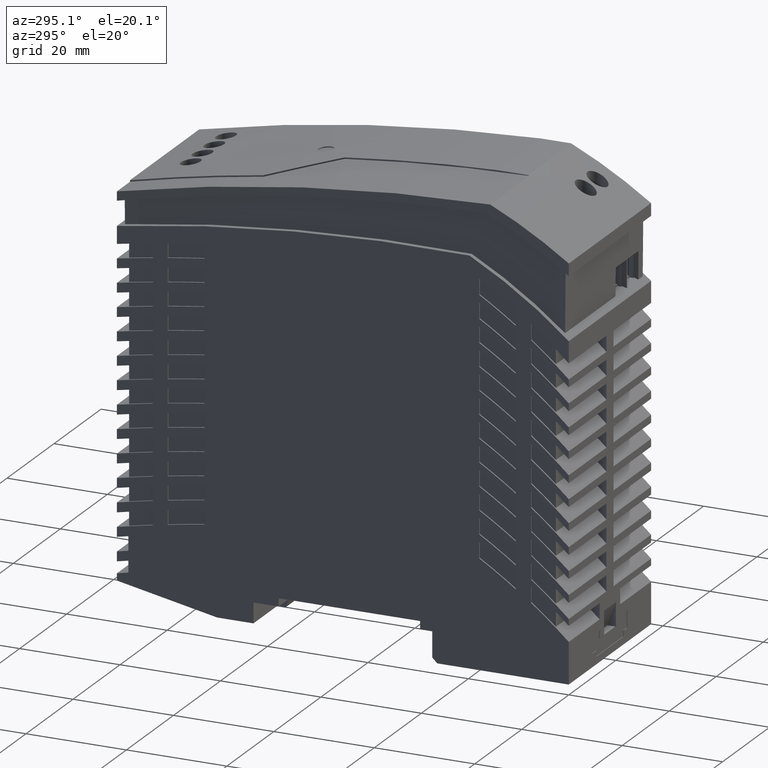
[diagram: clean part render]
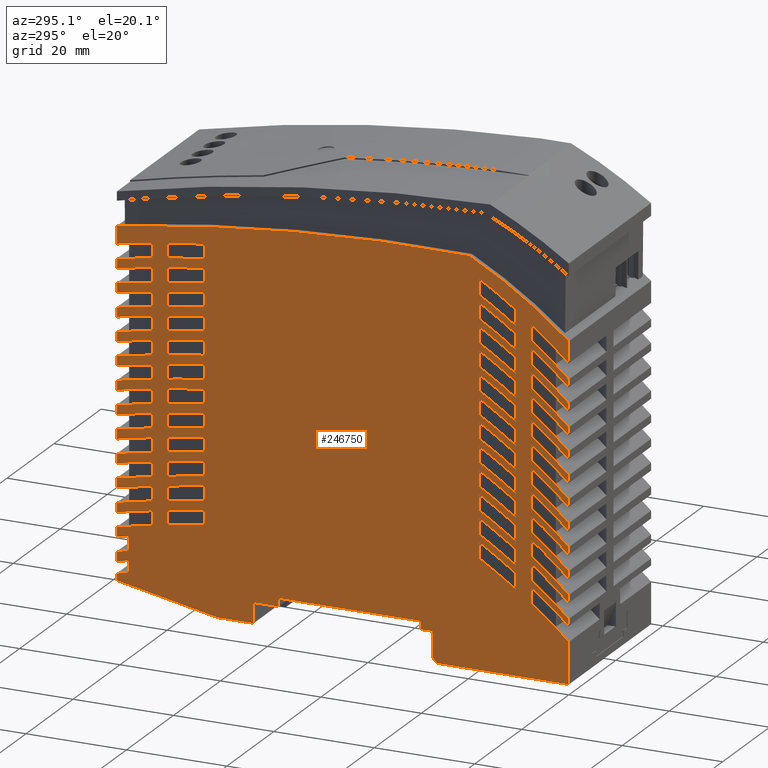
[diagram: same view with one face highlighted and labeled with its STEP entity id]
A machine part, auxiliary view. The second image highlights one B-rep face of the part: STEP entity #246750.
In plain terms, the highlighted planar face has unit normal (-1, -0, -0).
Its self-contained STEP definition (entity closure, byte-faithful):
#590=CARTESIAN_POINT('',(-45.0015236073532,52.5196322079585,-21.5));
#600=VERTEX_POINT('',#590);
#930=CARTESIAN_POINT('',(-37.4715236073769,58.9056714261643,-21.5));
#940=VERTEX_POINT('',#930);
#970=CARTESIAN_POINT('',(30.4869845880819,-28.8590205851877,-21.5));
#980=DIRECTION('',(0.,0.,-1.));
#990=DIRECTION('',(0.,-1.,0.));
#1000=AXIS2_PLACEMENT_3D('',#970,#980,#990);
#1010=CIRCLE('',#1000,110.999999999999);
#1020=EDGE_CURVE('',#600,#940,#1010,.T.);
#1230=CARTESIAN_POINT('',(44.9984763926468,44.4863049205983,-21.5));
#1240=VERTEX_POINT('',#1230);
#1590=CARTESIAN_POINT('',(37.8684763926293,45.7901440873221,-21.5));
#1600=VERTEX_POINT('',#1590);
#1630=CARTESIAN_POINT('',(-15.9369906467227,-268.59021718689,-21.5));
#1640=DIRECTION('',(0.,0.,1.));
#1650=DIRECTION('',(0.,1.,0.));
#1660=AXIS2_PLACEMENT_3D('',#1630,#1640,#1650);
#1670=CIRCLE('',#1660,318.951469409104);
#1680=EDGE_CURVE('',#1240,#1600,#1670,.T.);
#1890=CARTESIAN_POINT('',(-27.1415236073761,44.5090722762467,-21.5));
#1900=VERTEX_POINT('',#1890);
#2080=CARTESIAN_POINT('',(-34.4715236073682,39.6487135992776,-21.5));
#2090=VERTEX_POINT('',#2080);
#2120=CARTESIAN_POINT('',(30.4869845880913,-50.3590205852012,-21.5));
#2130=DIRECTION('',(0.,0.,1.));
#2140=DIRECTION('',(0.,1.,0.));
#2150=AXIS2_PLACEMENT_3D('',#2120,#2130,#2140);
#2160=CIRCLE('',#2150,111.000000000015);
#2170=EDGE_CURVE('',#1900,#2090,#2160,.T.);
#2870=CARTESIAN_POINT('',(-34.4715236073671,19.7487135992783,-21.5));
#2880=VERTEX_POINT('',#2870);
#3060=CARTESIAN_POINT('',(-27.1415236073671,24.6090722762521,-21.5));
#3070=VERTEX_POINT('',#3060);
#3100=CARTESIAN_POINT('',(30.486984588119,-70.2590205852444,-21.5));
#3110=DIRECTION('',(0.,0.,-1.));
#3120=DIRECTION('',(0.,-1.,0.));
#3130=AXIS2_PLACEMENT_3D('',#3100,#3110,#3120);
#3140=CIRCLE('',#3130,111.000000000066);
#3150=EDGE_CURVE('',#2880,#3070,#3140,.T.);
#3360=CARTESIAN_POINT('',(37.8684763926289,31.785068423606,-21.5));
#3370=VERTEX_POINT('',#3360);
#3540=CARTESIAN_POINT('',(37.8684763926288,34.5720854115749,-21.5));
#3550=VERTEX_POINT('',#3540);
#3580=CARTESIAN_POINT('',(37.8684763926288,0.,-21.5));
#3590=DIRECTION('',(0.,-1.,0.));
#3600=VECTOR('',#3590,1.);
#3610=LINE('',#3580,#3600);
#3620=EDGE_CURVE('',#3550,#3370,#3610,.T.);
#4790=CARTESIAN_POINT('',(37.8684763926289,50.4545764271543,-21.5));
#4800=VERTEX_POINT('',#4790);
#4970=CARTESIAN_POINT('',(37.8684763926288,53.2430653008147,-21.5));
#4980=VERTEX_POINT('',#4970);
#5010=CARTESIAN_POINT('',(37.8684763926288,0.,-21.5));
#5020=DIRECTION('',(0.,-1.,0.));
#5030=VECTOR('',#5020,1.);
#5040=LINE('',#5010,#5030);
#5050=EDGE_CURVE('',#4980,#4800,#5040,.T.);
#5260=CARTESIAN_POINT('',(27.538476392633,28.801895154807,-21.5));
#5270=VERTEX_POINT('',#5260);
#5440=CARTESIAN_POINT('',(27.5384763926329,31.5776921002853,-21.5));
#5450=VERTEX_POINT('',#5440);
#5480=CARTESIAN_POINT('',(27.5384763926329,0.,-21.5));
#5490=DIRECTION('',(0.,-1.,0.));
#5500=VECTOR('',#5490,1.);
#5510=LINE('',#5480,#5500);
#5520=EDGE_CURVE('',#5450,#5270,#5510,.T.);
#8740=CARTESIAN_POINT('',(-45.0015236073532,0.029072276211352,-21.5));
#8750=VERTEX_POINT('',#8740);
#8780=CARTESIAN_POINT('',(-45.0015236073532,0.,-21.5));
#8790=DIRECTION('',(0.,1.,0.));
#8800=VECTOR('',#8790,1.);
#8810=LINE('',#8780,#8800);
#8820=CARTESIAN_POINT('',(-45.0015236073532,8.20470011037345,-21.5));
#8830=VERTEX_POINT('',#8820);
#8840=EDGE_CURVE('',#8750,#8830,#8810,.T.);
#9060=CARTESIAN_POINT('',(-45.0015236073532,11.3047001103734,-21.5));
#9070=VERTEX_POINT('',#9060);
#9100=CARTESIAN_POINT('',(-45.0015236073532,12.6196322079583,-21.5));
#9110=VERTEX_POINT('',#9100);
#9120=EDGE_CURVE('',#9070,#9110,#8810,.T.);
#9340=CARTESIAN_POINT('',(-45.0015236073532,15.7196322079492,-21.5));
#9350=VERTEX_POINT('',#9340);
#9380=CARTESIAN_POINT('',(-45.0015236073532,0.,-21.5));
#9390=DIRECTION('',(0.,-1.,0.));
#9400=VECTOR('',#9390,1.);
#9410=LINE('',#9380,#9400);
#9420=CARTESIAN_POINT('',(-45.0015236073532,17.2196322079584,-21.5));
#9430=VERTEX_POINT('',#9420);
#9440=EDGE_CURVE('',#9430,#9350,#9410,.T.);
#9620=CARTESIAN_POINT('',(-45.0015236073532,20.3196322079584,-21.5));
#9630=VERTEX_POINT('',#9620);
#9660=CARTESIAN_POINT('',(-45.0015236073532,21.8196322079584,-21.5));
#9670=VERTEX_POINT('',#9660);
#9680=EDGE_CURVE('',#9670,#9630,#9410,.T.);
#9860=CARTESIAN_POINT('',(-45.0015236073532,24.9196322079585,-21.5));
#9870=VERTEX_POINT('',#9860);
#9900=CARTESIAN_POINT('',(-45.0015236073532,26.4196322079583,-21.5));
#9910=VERTEX_POINT('',#9900);
#9920=EDGE_CURVE('',#9910,#9870,#9410,.T.);
#10100=CARTESIAN_POINT('',(-45.0015236073532,29.5196322079585,-21.5));
#10110=VERTEX_POINT('',#10100);
#10140=CARTESIAN_POINT('',(-45.0015236073532,31.0196322079585,-21.5));
#10150=VERTEX_POINT('',#10140);
#10160=EDGE_CURVE('',#10150,#10110,#9410,.T.);
#10340=CARTESIAN_POINT('',(-45.0015236073532,34.1196322079584,-21.5));
#10350=VERTEX_POINT('',#10340);
#10380=CARTESIAN_POINT('',(-45.0015236073532,35.6196322079584,-21.5));
#10390=VERTEX_POINT('',#10380);
#10400=EDGE_CURVE('',#10390,#10350,#9410,.T.);
#10580=CARTESIAN_POINT('',(-45.0015236073532,38.7196322079491,-21.5));
#10590=VERTEX_POINT('',#10580);
#10620=CARTESIAN_POINT('',(-45.0015236073532,40.2196322079583,-21.5));
#10630=VERTEX_POINT('',#10620);
#10640=EDGE_CURVE('',#10630,#10590,#9410,.T.);
#10820=CARTESIAN_POINT('',(-45.0015236073532,43.3196322079583,-21.5));
#10830=VERTEX_POINT('',#10820);
#10860=CARTESIAN_POINT('',(-45.0015236073532,44.8196322079584,-21.5));
#10870=VERTEX_POINT('',#10860);
#10880=EDGE_CURVE('',#10870,#10830,#9410,.T.);
#11060=CARTESIAN_POINT('',(-45.0015236073532,47.9196322079584,-21.5));
#11070=VERTEX_POINT('',#11060);
#11100=CARTESIAN_POINT('',(-45.0015236073532,49.4196322079584,-21.5));
#11110=VERTEX_POINT('',#11100);
#11120=EDGE_CURVE('',#11110,#11070,#9410,.T.);
#11250=CARTESIAN_POINT('',(-45.0015236073532,54.0196322079584,-21.5));
#11260=VERTEX_POINT('',#11250);
#11270=EDGE_CURVE('',#11260,#600,#9410,.T.);
#11450=CARTESIAN_POINT('',(-45.0015236073532,57.1196322079583,-21.5));
#11460=VERTEX_POINT('',#11450);
#11490=CARTESIAN_POINT('',(-45.0015236073532,58.6196322079584,-21.5));
#11500=VERTEX_POINT('',#11490);
#11510=EDGE_CURVE('',#11500,#11460,#9410,.T.);
#11730=CARTESIAN_POINT('',(-45.0015236073532,61.7196322079584,-21.5));
#11740=VERTEX_POINT('',#11730);
#11770=CARTESIAN_POINT('',(-45.0015236073532,65.9624132898226,-21.5));
#11780=VERTEX_POINT('',#11770);
#11790=EDGE_CURVE('',#11780,#11740,#9410,.T.);
#13930=CARTESIAN_POINT('',(-27.1415236073671,29.2090722762461,-21.5));
#13940=VERTEX_POINT('',#13930);
#14110=CARTESIAN_POINT('',(-27.1415236073671,26.1090722762521,-21.5));
#14120=VERTEX_POINT('',#14110);
#14150=CARTESIAN_POINT('',(-27.1415236073671,0.,-21.5));
#14160=DIRECTION('',(0.,1.,0.));
#14170=VECTOR('',#14160,1.);
#14180=LINE('',#14150,#14170);
#14190=EDGE_CURVE('',#14120,#13940,#14180,.T.);
#14400=CARTESIAN_POINT('',(37.8684763926294,27.112477601506,-21.5));
#14410=VERTEX_POINT('',#14400);
#14490=CARTESIAN_POINT('',(37.868476392629,29.8990819794306,-21.5));
#14500=VERTEX_POINT('',#14490);
#14530=CARTESIAN_POINT('',(37.868476392629,0.,-21.5));
#14540=DIRECTION('',(0.,-1.,0.));
#14550=VECTOR('',#14540,1.);
#14560=LINE('',#14530,#14550);
#14570=EDGE_CURVE('',#14500,#14410,#14560,.T.);
#14780=CARTESIAN_POINT('',(34.8684763926289,35.0892429664751,-21.5));
#14790=VERTEX_POINT('',#14780);
#14960=CARTESIAN_POINT('',(34.868476392633,32.3022259785125,-21.5));
#14970=VERTEX_POINT('',#14960);
#15000=CARTESIAN_POINT('',(34.8684763926329,0.,-21.5));
#15010=DIRECTION('',(0.,1.,0.));
#15020=VECTOR('',#15010,1.);
#15030=LINE('',#15000,#15020);
#15040=EDGE_CURVE('',#14970,#14790,#15030,.T.);
#16140=CARTESIAN_POINT('',(37.8684763926288,36.4554791051708,-21.5));
#16150=VERTEX_POINT('',#16140);
#16320=CARTESIAN_POINT('',(37.8684763926287,39.2428897343849,-21.5));
#16330=VERTEX_POINT('',#16320);
#16360=CARTESIAN_POINT('',(37.8684763926287,0.,-21.5));
#16370=DIRECTION('',(0.,-1.,0.));
#16380=VECTOR('',#16370,1.);
#16390=LINE('',#16360,#16380);
#16400=EDGE_CURVE('',#16330,#16150,#16390,.T.);
#16610=CARTESIAN_POINT('',(34.8684763926327,30.424321789122,-21.5));
#16620=VERTEX_POINT('',#16610);
#16790=CARTESIAN_POINT('',(34.868476392633,27.6377174112158,-21.5));
#16800=VERTEX_POINT('',#16790);
#16830=CARTESIAN_POINT('',(34.8684763926329,0.,-21.5));
#16840=DIRECTION('',(0.,1.,0.));
#16850=VECTOR('',#16840,1.);
#16860=LINE('',#16830,#16850);
#16870=EDGE_CURVE('',#16800,#16620,#16860,.T.);
#17080=CARTESIAN_POINT('',(27.5384763926331,61.3006562730329,-21.5));
#17090=VERTEX_POINT('',#17080);
#17260=CARTESIAN_POINT('',(27.5384763926328,64.0809925169962,-21.5));
#17270=VERTEX_POINT('',#17260);
#17300=CARTESIAN_POINT('',(27.5384763926328,0.,-21.5));
#17310=DIRECTION('',(0.,-1.,0.));
#17320=VECTOR('',#17310,1.);
#17330=LINE('',#17300,#17320);
#17340=EDGE_CURVE('',#17270,#17090,#17330,.T.);
#18000=CARTESIAN_POINT('',(30.4869845880804,-27.3590205851859,-21.5));
#18010=DIRECTION('',(0.,0.,1.));
#18020=DIRECTION('',(0.,1.,0.));
#18030=AXIS2_PLACEMENT_3D('',#18000,#18010,#18020);
#18040=CIRCLE('',#18030,110.999999999996);
#18050=CARTESIAN_POINT('',(-37.4715236073768,60.4056714261642,-21.5));
#18060=VERTEX_POINT('',#18050);
#18070=EDGE_CURVE('',#18060,#11260,#18040,.T.);
#18610=CARTESIAN_POINT('',(37.8684763926296,62.5671800078795,-21.5));
#18620=VERTEX_POINT('',#18610);
#18970=CARTESIAN_POINT('',(44.9984763926468,61.3296501397549,-21.5));
#18980=VERTEX_POINT('',#18970);
#19010=CARTESIAN_POINT('',(-15.9369906467863,-268.590217187256,-21.5));
#19020=DIRECTION('',(0.,0.,-1.));
#19030=DIRECTION('',(0.,-1.,0.));
#19040=AXIS2_PLACEMENT_3D('',#19010,#19020,#19030);
#19050=CIRCLE('',#19040,335.500000000576);
#19060=EDGE_CURVE('',#18620,#18980,#19050,.T.);
#19270=CARTESIAN_POINT('',(34.8684763926329,69.555383868589,-21.5));
#19280=VERTEX_POINT('',#19270);
#19460=CARTESIAN_POINT('',(27.538476392633,70.5757108777786,-21.5));
#19470=VERTEX_POINT('',#19460);
#19500=CARTESIAN_POINT('',(-15.9369906466847,-268.590217186677,-21.5));
#19510=DIRECTION('',(0.,0.,1.));
#19520=DIRECTION('',(0.,1.,0.));
#19530=AXIS2_PLACEMENT_3D('',#19500,#19510,#19520);
#19540=CIRCLE('',#19530,341.940993439088);
#19550=EDGE_CURVE('',#19280,#19470,#19540,.T.);
#19760=CARTESIAN_POINT('',(44.9984763926468,53.8510638277123,-21.5));
#19770=VERTEX_POINT('',#19760);
#20120=CARTESIAN_POINT('',(37.8684763926299,55.1171855124011,-21.5));
#20130=VERTEX_POINT('',#20120);
#20160=CARTESIAN_POINT('',(-15.9369906466863,-268.590217186656,-21.5));
#20170=DIRECTION('',(0.,0.,1.));
#20180=DIRECTION('',(0.,1.,0.));
#20190=AXIS2_PLACEMENT_3D('',#20160,#20170,#20180);
#20200=CIRCLE('',#20190,328.148610915068);
#20210=EDGE_CURVE('',#19770,#20130,#20200,.T.);
#20890=CARTESIAN_POINT('',(27.538476392633,65.9386936083438,-21.5));
#20900=VERTEX_POINT('',#20890);
#21070=CARTESIAN_POINT('',(27.5384763926328,68.7195718288586,-21.5));
#21080=VERTEX_POINT('',#21070);
#21110=CARTESIAN_POINT('',(27.5384763926328,0.,-21.5));
#21120=DIRECTION('',(0.,-1.,0.));
#21130=VECTOR('',#21120,1.);
#21140=LINE('',#21110,#21130);
#21150=EDGE_CURVE('',#21080,#20900,#21140,.T.);
#22240=CARTESIAN_POINT('',(34.868476392633,46.2845002536193,-21.5));
#22250=VERTEX_POINT('',#22240);
#22430=CARTESIAN_POINT('',(27.538476392633,47.3799822465968,-21.5));
#22440=VERTEX_POINT('',#22430);
#22470=CARTESIAN_POINT('',(-15.9369906466885,-268.590217186712,-21.5));
#22480=DIRECTION('',(0.,0.,1.));
#22490=DIRECTION('',(0.,1.,0.));
#22500=AXIS2_PLACEMENT_3D('',#22470,#22480,#22490);
#22510=CIRCLE('',#22500,318.947147916724);
#22520=EDGE_CURVE('',#22250,#22440,#22510,.T.);
#23220=CARTESIAN_POINT('',(34.8684763926326,58.3862567665861,-21.5));
#23230=VERTEX_POINT('',#23220);
#23400=CARTESIAN_POINT('',(34.868476392633,55.5974394007099,-21.5));
#23410=VERTEX_POINT('',#23400);
#23440=CARTESIAN_POINT('',(34.8684763926329,0.,-21.5));
#23450=DIRECTION('',(0.,1.,0.));
#23460=VECTOR('',#23450,1.);
#23470=LINE('',#23440,#23460);
#23480=EDGE_CURVE('',#23410,#23230,#23470,.T.);
#23690=CARTESIAN_POINT('',(34.8684763926291,25.7573571517402,-21.5));
#23700=VERTEX_POINT('',#23690);
#23780=CARTESIAN_POINT('',(34.8684763926329,22.9711856051293,-21.5));
#23790=VERTEX_POINT('',#23780);
#23820=CARTESIAN_POINT('',(34.8684763926329,0.,-21.5));
#23830=DIRECTION('',(0.,1.,0.));
#23840=VECTOR('',#23830,1.);
#23850=LINE('',#23820,#23840);
#23860=EDGE_CURVE('',#23790,#23700,#23850,.T.);
#24070=CARTESIAN_POINT('',(27.538476392633,33.4484253753521,-21.5));
#24080=VERTEX_POINT('',#24070);
#24250=CARTESIAN_POINT('',(27.5384763926328,36.2249624971863,-21.5));
#24260=VERTEX_POINT('',#24250);
#24290=CARTESIAN_POINT('',(27.5384763926328,0.,-21.5));
#24300=DIRECTION('',(0.,-1.,0.));
#24310=VECTOR('',#24300,1.);
#24320=LINE('',#24290,#24310);
#24330=EDGE_CURVE('',#24260,#24080,#24320,.T.);
#24540=CARTESIAN_POINT('',(34.8684763926327,49.0726457968786,-21.5));
#24550=VERTEX_POINT('',#24540);
#24670=CARTESIAN_POINT('',(34.8684763926329,0.,-21.5));
#24680=DIRECTION('',(0.,1.,0.));
#24690=VECTOR('',#24680,1.);
#24700=LINE('',#24670,#24690);
#24710=EDGE_CURVE('',#22250,#24550,#24700,.T.);
#24920=CARTESIAN_POINT('',(27.538476392628,56.6615559528685,-21.5));
#24930=VERTEX_POINT('',#24920);
#25100=CARTESIAN_POINT('',(27.5384763926328,59.4413266710828,-21.5));
#25110=VERTEX_POINT('',#25100);
#25140=CARTESIAN_POINT('',(27.5384763926328,0.,-21.5));
#25150=DIRECTION('',(0.,-1.,0.));
#25160=VECTOR('',#25150,1.);
#25170=LINE('',#25140,#25160);
#25180=EDGE_CURVE('',#25110,#24930,#25170,.T.);
#26840=CARTESIAN_POINT('',(37.8684763926329,69.0948200901775,-21.5));
#26850=VERTEX_POINT('',#26840);
#26930=CARTESIAN_POINT('',(37.8684763926327,71.8845421078599,-21.5));
#26940=VERTEX_POINT('',#26930);
#26970=CARTESIAN_POINT('',(37.8684763926327,0.,-21.5));
#26980=DIRECTION('',(0.,-1.,0.));
#26990=VECTOR('',#26980,1.);
#27000=LINE('',#26970,#26990);
#27010=EDGE_CURVE('',#26940,#26850,#27000,.T.);
#27270=CARTESIAN_POINT('',(-15.936990646674,-268.590217186597,-21.5));
#27280=DIRECTION('',(0.,0.,1.));
#27290=DIRECTION('',(0.,1.,0.));
#27300=AXIS2_PLACEMENT_3D('',#27270,#27280,#27290);
#27310=CIRCLE('',#27300,300.553131271608);
#27320=EDGE_CURVE('',#16800,#5270,#27310,.T.);
#27530=CARTESIAN_POINT('',(27.5384763926329,50.1585455806561,-21.5));
#27540=VERTEX_POINT('',#27530);
#27670=CARTESIAN_POINT('',(-15.9369906467313,-268.590217186983,-21.5));
#27680=DIRECTION('',(0.,0.,-1.));
#27690=DIRECTION('',(0.,-1.,0.));
#27700=AXIS2_PLACEMENT_3D('',#27670,#27680,#27690);
#27710=CIRCLE('',#27700,321.700000000298);
#27720=EDGE_CURVE('',#27540,#24550,#27710,.T.);
#28160=CARTESIAN_POINT('',(27.5384763926329,0.,-21.5));
#28170=DIRECTION('',(0.,-1.,0.));
#28180=VECTOR('',#28170,1.);
#28190=LINE('',#28160,#28180);
#28200=EDGE_CURVE('',#27540,#22440,#28190,.T.);
#28460=CARTESIAN_POINT('',(-15.9369906467193,-268.590217186892,-21.5));
#28470=DIRECTION('',(0.,0.,1.));
#28480=DIRECTION('',(0.,1.,0.));
#28490=AXIS2_PLACEMENT_3D('',#28460,#28470,#28480);
#28500=CIRCLE('',#28490,305.151532578706);
#28510=EDGE_CURVE('',#14970,#24080,#28500,.T.);
#29190=CARTESIAN_POINT('',(27.5384763926329,19.5044364337102,-21.5));
#29200=VERTEX_POINT('',#29190);
#29370=CARTESIAN_POINT('',(27.5384763926329,22.2786428958458,-21.5));
#29380=VERTEX_POINT('',#29370);
#29410=CARTESIAN_POINT('',(27.5384763926329,0.,-21.5));
#29420=DIRECTION('',(0.,-1.,0.));
#29430=VECTOR('',#29420,1.);
#29440=LINE('',#29410,#29430);
#29450=EDGE_CURVE('',#29380,#29200,#29440,.T.);
#29660=CARTESIAN_POINT('',(27.5384763926328,40.8708203700819,-21.5));
#29670=VERTEX_POINT('',#29660);
#29850=CARTESIAN_POINT('',(34.8684763926326,39.7522134305012,-21.5));
#29860=VERTEX_POINT('',#29850);
#29890=CARTESIAN_POINT('',(-15.9369906467975,-268.590217187413,-21.5));
#29900=DIRECTION('',(0.,0.,-1.));
#29910=DIRECTION('',(0.,-1.,0.));
#29920=AXIS2_PLACEMENT_3D('',#29890,#29900,#29910);
#29930=CIRCLE('',#29920,312.500000000732);
#29940=EDGE_CURVE('',#29670,#29860,#29930,.T.);
#30150=CARTESIAN_POINT('',(-34.4715236073671,51.9487135992783,-21.5));
#30160=VERTEX_POINT('',#30150);
#30340=CARTESIAN_POINT('',(-27.1415236073695,56.8090722762506,-21.5));
#30350=VERTEX_POINT('',#30340);
#30380=CARTESIAN_POINT('',(30.4869845880863,-38.0590205851944,-21.5));
#30390=DIRECTION('',(0.,0.,-1.));
#30400=DIRECTION('',(0.,-1.,0.));
#30410=AXIS2_PLACEMENT_3D('',#30380,#30390,#30400);
#30420=CIRCLE('',#30410,111.000000000007);
#30430=EDGE_CURVE('',#30160,#30350,#30420,.T.);
#31490=CARTESIAN_POINT('',(44.9984763926468,51.9695414491986,-21.5));
#31500=VERTEX_POINT('',#31490);
#31530=CARTESIAN_POINT('',(-15.9369906467788,-268.590217187213,-21.5));
#31540=DIRECTION('',(0.,0.,-1.));
#31550=DIRECTION('',(0.,-1.,0.));
#31560=AXIS2_PLACEMENT_3D('',#31530,#31540,#31550);
#31570=CIRCLE('',#31560,326.300000000532);
#31580=EDGE_CURVE('',#4980,#31500,#31570,.T.);
#31790=CARTESIAN_POINT('',(44.9984763926468,58.5299668623666,-21.5));
#31800=VERTEX_POINT('',#31790);
#32050=CARTESIAN_POINT('',(37.8684763926296,59.7780481378862,-21.5));
#32060=VERTEX_POINT('',#32050);
#32090=CARTESIAN_POINT('',(-15.9369906466382,-268.590217186426,-21.5));
#32100=DIRECTION('',(0.,0.,1.));
#32110=DIRECTION('',(0.,1.,0.));
#32120=AXIS2_PLACEMENT_3D('',#32090,#32100,#32110);
#32130=CIRCLE('',#32120,332.747270395133);
#32140=EDGE_CURVE('',#31800,#32060,#32130,.T.);
#32920=CARTESIAN_POINT('',(-34.4715236073671,25.8487135992783,-21.5));
#32930=VERTEX_POINT('',#32920);
#33100=CARTESIAN_POINT('',(-34.4715236073671,28.9487135992783,-21.5));
#33110=VERTEX_POINT('',#33100);
#33140=CARTESIAN_POINT('',(-34.4715236073671,0.,-21.5));
#33150=DIRECTION('',(0.,-1.,0.));
#33160=VECTOR('',#33150,1.);
#33170=LINE('',#33140,#33160);
#33180=EDGE_CURVE('',#33110,#32930,#33170,.T.);
#33390=CARTESIAN_POINT('',(34.868476392633,41.6255339054006,-21.5));
#33400=VERTEX_POINT('',#33390);
#33480=CARTESIAN_POINT('',(27.538476392633,42.7374100365077,-21.5));
#33490=VERTEX_POINT('',#33480);
#33520=CARTESIAN_POINT('',(-15.9369906467089,-268.590217186839,-21.5));
#33530=DIRECTION('',(0.,0.,1.));
#33540=DIRECTION('',(0.,1.,0.));
#33550=AXIS2_PLACEMENT_3D('',#33520,#33530,#33540);
#33560=CIRCLE('',#33550,314.348544941452);
#33570=EDGE_CURVE('',#33400,#33490,#33560,.T.);
#35000=CARTESIAN_POINT('',(44.9984763926468,21.0286517449621,-21.5));
#35010=VERTEX_POINT('',#35000);
#35360=CARTESIAN_POINT('',(37.8684763926287,22.437602963261,-21.5));
#35370=VERTEX_POINT('',#35360);
#35400=CARTESIAN_POINT('',(-15.9369906467372,-268.590217186939,-21.5));
#35410=DIRECTION('',(0.,0.,1.));
#35420=DIRECTION('',(0.,1.,0.));
#35430=AXIS2_PLACEMENT_3D('',#35400,#35410,#35420);
#35440=CIRCLE('',#35430,295.959829005055);
#35450=EDGE_CURVE('',#35010,#35370,#35440,.T.);
#35660=CARTESIAN_POINT('',(-27.1415236073671,30.7090722762521,-21.5));
#35670=VERTEX_POINT('',#35660);
#35800=CARTESIAN_POINT('',(30.4869845880735,-64.1590205851745,-21.5));
#35810=DIRECTION('',(0.,0.,1.));
#35820=DIRECTION('',(0.,1.,0.));
#35830=AXIS2_PLACEMENT_3D('',#35800,#35810,#35820);
#35840=CIRCLE('',#35830,110.999999999983);
#35850=EDGE_CURVE('',#35670,#32930,#35840,.T.);
#36060=CARTESIAN_POINT('',(-27.1415236073677,58.3090722762517,-21.5));
#36070=VERTEX_POINT('',#36060);
#36250=CARTESIAN_POINT('',(-34.4715236073701,53.448713599276,-21.5));
#36260=VERTEX_POINT('',#36250);
#36290=CARTESIAN_POINT('',(30.4869845880994,-36.5590205852144,-21.5));
#36300=DIRECTION('',(0.,0.,1.));
#36310=DIRECTION('',(0.,1.,0.));
#36320=AXIS2_PLACEMENT_3D('',#36290,#36300,#36310);
#36330=CIRCLE('',#36320,111.000000000031);
#36340=EDGE_CURVE('',#36070,#36260,#36330,.T.);
#37520=CARTESIAN_POINT('',(-34.4715236073671,21.2487135992783,-21.5));
#37530=VERTEX_POINT('',#37520);
#37560=CARTESIAN_POINT('',(30.4869845880688,-68.7590205851679,-21.5));
#37570=DIRECTION('',(0.,0.,1.));
#37580=DIRECTION('',(0.,1.,0.));
#37590=AXIS2_PLACEMENT_3D('',#37560,#37570,#37580);
#37600=CIRCLE('',#37590,110.999999999975);
#37610=EDGE_CURVE('',#14120,#37530,#37600,.T.);
#38130=CARTESIAN_POINT('',(-34.4715236073671,33.5487135992783,-21.5));
#38140=VERTEX_POINT('',#38130);
#38320=CARTESIAN_POINT('',(-27.1415236073761,38.4090722762467,-21.5));
#38330=VERTEX_POINT('',#38320);
#38360=CARTESIAN_POINT('',(30.4869845880916,-56.4590205852006,-21.5));
#38370=DIRECTION('',(0.,0.,-1.));
#38380=DIRECTION('',(0.,-1.,0.));
#38390=AXIS2_PLACEMENT_3D('',#38360,#38370,#38380);
#38400=CIRCLE('',#38390,111.000000000015);
#38410=EDGE_CURVE('',#38140,#38330,#38400,.T.);
#40910=CARTESIAN_POINT('',(44.9984763926468,35.1115674083355,-21.5));
#40920=VERTEX_POINT('',#40910);
#41140=CARTESIAN_POINT('',(-15.9369906467389,-268.590217186966,-21.5));
#41150=DIRECTION('',(0.,0.,1.));
#41160=DIRECTION('',(0.,1.,0.));
#41170=AXIS2_PLACEMENT_3D('',#41140,#41150,#41160);
#41180=CIRCLE('',#41170,309.754588520782);
#41190=EDGE_CURVE('',#40920,#16150,#41180,.T.);
#41870=CARTESIAN_POINT('',(-27.1415236073761,47.6090722762466,-21.5));
#41880=VERTEX_POINT('',#41870);
#42000=CARTESIAN_POINT('',(-27.1415236073761,0.,-21.5));
#42010=DIRECTION('',(0.,1.,0.));
#42020=VECTOR('',#42010,1.);
#42030=LINE('',#42000,#42020);
#42040=EDGE_CURVE('',#1900,#41880,#42030,.T.);
#43650=CARTESIAN_POINT('',(-37.4715236073769,26.7056714261643,-21.5));
#43660=VERTEX_POINT('',#43650);
#43690=CARTESIAN_POINT('',(30.4869845880758,-61.0590205851801,-21.5));
#43700=DIRECTION('',(0.,0.,-1.));
#43710=DIRECTION('',(0.,-1.,0.));
#43720=AXIS2_PLACEMENT_3D('',#43690,#43700,#43710);
#43730=CIRCLE('',#43720,110.999999999989);
#43740=EDGE_CURVE('',#9630,#43660,#43730,.T.);
#43950=CARTESIAN_POINT('',(-34.4715236073671,65.7487135992783,-21.5));
#43960=VERTEX_POINT('',#43950);
#44040=CARTESIAN_POINT('',(-27.1415236073762,70.6090722762467,-21.5));
#44050=VERTEX_POINT('',#44040);
#44080=CARTESIAN_POINT('',(30.4869845880803,-24.259020585185,-21.5));
#44090=DIRECTION('',(0.,0.,-1.));
#44100=DIRECTION('',(0.,-1.,0.));
#44110=AXIS2_PLACEMENT_3D('',#44080,#44090,#44100);
#44120=CIRCLE('',#44110,110.999999999996);
#44130=EDGE_CURVE('',#43960,#44050,#44120,.T.);
#44270=CARTESIAN_POINT('',(-27.1415236073671,33.8090722762522,-21.5));
#44280=VERTEX_POINT('',#44270);
#44400=CARTESIAN_POINT('',(-27.1415236073671,0.,-21.5));
#44410=DIRECTION('',(0.,1.,0.));
#44420=VECTOR('',#44410,1.);
#44430=LINE('',#44400,#44420);
#44440=EDGE_CURVE('',#35670,#44280,#44430,.T.);
#44650=CARTESIAN_POINT('',(-37.4715236073769,35.9056714261642,-21.5));
#44660=VERTEX_POINT('',#44650);
#44830=CARTESIAN_POINT('',(-37.4715236073769,32.8056714261643,-21.5));
#44840=VERTEX_POINT('',#44830);
#44870=CARTESIAN_POINT('',(-37.4715236073769,0.,-21.5));
#44880=DIRECTION('',(0.,1.,0.));
#44890=VECTOR('',#44880,1.);
#44900=LINE('',#44870,#44890);
#44910=EDGE_CURVE('',#44840,#44660,#44900,.T.);
#45120=CARTESIAN_POINT('',(-27.1415236073696,72.1090722762507,-21.5));
#45130=VERTEX_POINT('',#45120);
#45310=CARTESIAN_POINT('',(-34.4715236073675,67.248713599278,-21.5));
#45320=VERTEX_POINT('',#45310);
#45350=CARTESIAN_POINT('',(30.4869845880935,-22.7590205852045,-21.5));
#45360=DIRECTION('',(0.,0.,1.));
#45370=DIRECTION('',(0.,1.,0.));
#45380=AXIS2_PLACEMENT_3D('',#45350,#45360,#45370);
#45390=CIRCLE('',#45380,111.000000000019);
#45400=EDGE_CURVE('',#45130,#45320,#45390,.T.);
#45950=CARTESIAN_POINT('',(34.8684763926299,63.0406838447395,-21.5));
#45960=VERTEX_POINT('',#45950);
#45990=CARTESIAN_POINT('',(-15.9369906466944,-268.590217186712,-21.5));
#46000=DIRECTION('',(0.,0.,-1.));
#46010=DIRECTION('',(0.,-1.,0.));
#46020=AXIS2_PLACEMENT_3D('',#45990,#46000,#46010);
#46030=CIRCLE('',#46020,335.500000000024);
#46040=EDGE_CURVE('',#17270,#45960,#46030,.T.);
#46340=CARTESIAN_POINT('',(34.8684763926303,60.2515519747454,-21.5));
#46350=VERTEX_POINT('',#46340);
#46380=CARTESIAN_POINT('',(34.8684763926302,0.,-21.5));
#46390=DIRECTION('',(0.,1.,0.));
#46400=VECTOR('',#46390,1.);
#46410=LINE('',#46380,#46400);
#46420=EDGE_CURVE('',#46350,#45960,#46410,.T.);
#46900=CARTESIAN_POINT('',(-37.4715236073769,22.1056714261564,-21.5));
#46910=VERTEX_POINT('',#46900);
#46940=CARTESIAN_POINT('',(30.4869845880981,-65.6590205851951,-21.5));
#46950=DIRECTION('',(0.,0.,-1.));
#46960=DIRECTION('',(0.,-1.,0.));
#46970=AXIS2_PLACEMENT_3D('',#46940,#46950,#46960);
#46980=CIRCLE('',#46970,111.000000000008);
#46990=EDGE_CURVE('',#9350,#46910,#46980,.T.);
#47620=CARTESIAN_POINT('',(27.5384763926328,45.515328395864,-21.5));
#47630=VERTEX_POINT('',#47620);
#47660=CARTESIAN_POINT('',(27.5384763926328,0.,-21.5));
#47670=DIRECTION('',(0.,-1.,0.));
#47680=VECTOR('',#47670,1.);
#47690=LINE('',#47660,#47680);
#47700=EDGE_CURVE('',#47630,#33490,#47690,.T.);
#47910=CARTESIAN_POINT('',(27.538476392633,24.1539216867124,-21.5));
#47920=VERTEX_POINT('',#47910);
#48000=CARTESIAN_POINT('',(27.5384763926327,26.9289425402451,-21.5));
#48010=VERTEX_POINT('',#48000);
#48040=CARTESIAN_POINT('',(27.5384763926327,0.,-21.5));
#48050=DIRECTION('',(0.,-1.,0.));
#48060=VECTOR('',#48050,1.);
#48070=LINE('',#48040,#48060);
#48080=EDGE_CURVE('',#48010,#47920,#48070,.T.);
#48830=CARTESIAN_POINT('',(-15.9369906467415,-268.590217187041,-21.5));
#48840=DIRECTION('',(0.,0.,-1.));
#48850=DIRECTION('',(0.,-1.,0.));
#48860=AXIS2_PLACEMENT_3D('',#48830,#48840,#48850);
#48870=CIRCLE('',#48860,307.900000000357);
#48880=EDGE_CURVE('',#24260,#14790,#48870,.T.);
#49140=CARTESIAN_POINT('',(-15.9369906467827,-268.590217187302,-21.5));
#49150=DIRECTION('',(0.,0.,-1.));
#49160=DIRECTION('',(0.,-1.,0.));
#49170=AXIS2_PLACEMENT_3D('',#49140,#49150,#49160);
#49180=CIRCLE('',#49170,303.300000000621);
#49190=EDGE_CURVE('',#5450,#16620,#49180,.T.);
#49400=CARTESIAN_POINT('',(27.5384763926329,54.8005275258234,-21.5));
#49410=VERTEX_POINT('',#49400);
#49490=CARTESIAN_POINT('',(34.8684763926328,53.7302669884825,-21.5));
#49500=VERTEX_POINT('',#49490);
#49530=CARTESIAN_POINT('',(-15.9369906466837,-268.59021718668,-21.5));
#49540=DIRECTION('',(0.,0.,-1.));
#49550=DIRECTION('',(0.,-1.,0.));
#49560=AXIS2_PLACEMENT_3D('',#49530,#49540,#49550);
#49570=CIRCLE('',#49560,326.299999999991);
#49580=EDGE_CURVE('',#49410,#49500,#49570,.T.);
#49790=CARTESIAN_POINT('',(37.8684763926296,64.4372368195887,-21.5));
#49800=VERTEX_POINT('',#49790);
#49880=CARTESIAN_POINT('',(37.8684763926295,67.2266699954199,-21.5));
#49890=VERTEX_POINT('',#49880);
#49920=CARTESIAN_POINT('',(37.8684763926295,0.,-21.5));
#49930=DIRECTION('',(0.,-1.,0.));
#49940=VECTOR('',#49930,1.);
#49950=LINE('',#49920,#49940);
#49960=EDGE_CURVE('',#49890,#49800,#49950,.T.);
#50160=CARTESIAN_POINT('',(37.8684763926296,0.,-21.5));
#50170=DIRECTION('',(0.,-1.,0.));
#50180=VECTOR('',#50170,1.);
#50190=LINE('',#50160,#50180);
#50200=EDGE_CURVE('',#18620,#32060,#50190,.T.);
#50460=CARTESIAN_POINT('',(-15.9369906467551,-268.590217187168,-21.5));
#50470=DIRECTION('',(0.,0.,1.));
#50480=DIRECTION('',(0.,1.,0.));
#50490=AXIS2_PLACEMENT_3D('',#50460,#50470,#50480);
#50500=CIRCLE('',#50490,332.743301400084);
#50510=EDGE_CURVE('',#46350,#17090,#50500,.T.);
#51130=CARTESIAN_POINT('',(34.8684763926291,44.4133203634755,-21.5));
#51140=VERTEX_POINT('',#51130);
#51170=CARTESIAN_POINT('',(-15.9369906466925,-268.590217186715,-21.5));
#51180=DIRECTION('',(0.,0.,-1.));
#51190=DIRECTION('',(0.,-1.,0.));
#51200=AXIS2_PLACEMENT_3D('',#51170,#51180,#51190);
#51210=CIRCLE('',#51200,317.100000000027);
#51220=EDGE_CURVE('',#47630,#51140,#51210,.T.);
#51420=CARTESIAN_POINT('',(-15.9369906467439,-268.590217187064,-21.5));
#51430=DIRECTION('',(0.,0.,-1.));
#51440=DIRECTION('',(0.,-1.,0.));
#51450=AXIS2_PLACEMENT_3D('',#51420,#51430,#51440);
#51460=CIRCLE('',#51450,330.90000000038);
#51470=EDGE_CURVE('',#25110,#23230,#51460,.T.);
#51670=CARTESIAN_POINT('',(-15.9369906467038,-268.590217186791,-21.5));
#51680=DIRECTION('',(0.,0.,1.));
#51690=DIRECTION('',(0.,1.,0.));
#51700=AXIS2_PLACEMENT_3D('',#51670,#51680,#51690);
#51710=CIRCLE('',#51700,295.954805805004);
#51720=EDGE_CURVE('',#23790,#47920,#51710,.T.);
#51890=CARTESIAN_POINT('',(30.4869845880943,-68.7590205852013,-21.5));
#51900=DIRECTION('',(0.,0.,1.));
#51910=DIRECTION('',(0.,1.,0.));
#51920=AXIS2_PLACEMENT_3D('',#51890,#51900,#51910);
#51930=CIRCLE('',#51920,111.000000000017);
#51940=CARTESIAN_POINT('',(-37.4715236073768,19.0056714261642,-21.5));
#51950=VERTEX_POINT('',#51940);
#51960=EDGE_CURVE('',#51950,#9110,#51930,.T.);
#52500=CARTESIAN_POINT('',(27.5384763926331,52.0213472774904,-21.5));
#52510=VERTEX_POINT('',#52500);
#52560=CARTESIAN_POINT('',(27.5384763926329,0.,-21.5));
#52570=DIRECTION('',(0.,-1.,0.));
#52580=VECTOR('',#52570,1.);
#52590=LINE('',#52560,#52580);
#52600=EDGE_CURVE('',#49410,#52510,#52590,.T.);
#53470=CARTESIAN_POINT('',(-34.4715236073671,58.0487135992782,-21.5));
#53480=VERTEX_POINT('',#53470);
#53650=CARTESIAN_POINT('',(-34.4715236073671,61.1487135992783,-21.5));
#53660=VERTEX_POINT('',#53650);
#53690=CARTESIAN_POINT('',(-34.4715236073671,0.,-21.5));
#53700=DIRECTION('',(0.,-1.,0.));
#53710=VECTOR('',#53700,1.);
#53720=LINE('',#53690,#53710);
#53730=EDGE_CURVE('',#53660,#53480,#53720,.T.);
#53940=CARTESIAN_POINT('',(-34.4715236073702,62.6487135992761,-21.5));
#53950=VERTEX_POINT('',#53940);
#54000=CARTESIAN_POINT('',(-34.4715236073671,0.,-21.5));
#54010=DIRECTION('',(0.,-1.,0.));
#54020=VECTOR('',#54010,1.);
#54030=LINE('',#54000,#54020);
#54040=EDGE_CURVE('',#43960,#53950,#54030,.T.);
#55530=CARTESIAN_POINT('',(-27.1415236073678,53.7090722762517,-21.5));
#55540=VERTEX_POINT('',#55530);
#55570=CARTESIAN_POINT('',(-27.1415236073671,0.,-21.5));
#55580=DIRECTION('',(0.,1.,0.));
#55590=VECTOR('',#55580,1.);
#55600=LINE('',#55570,#55590);
#55610=EDGE_CURVE('',#55540,#30350,#55600,.T.);
#58580=CARTESIAN_POINT('',(-34.4715236073671,42.7487135992783,-21.5));
#58590=VERTEX_POINT('',#58580);
#58720=CARTESIAN_POINT('',(30.486984588101,-47.2590205852158,-21.5));
#58730=DIRECTION('',(0.,0.,-1.));
#58740=DIRECTION('',(0.,-1.,0.));
#58750=AXIS2_PLACEMENT_3D('',#58720,#58730,#58740);
#58760=CIRCLE('',#58750,111.000000000033);
#58770=EDGE_CURVE('',#58590,#41880,#58760,.T.);
#60260=CARTESIAN_POINT('',(34.8684763926326,72.3451058863491,-21.5));
#60270=VERTEX_POINT('',#60260);
#60320=CARTESIAN_POINT('',(34.8684763926329,0.,-21.5));
#60330=DIRECTION('',(0.,1.,0.));
#60340=VECTOR('',#60330,1.);
#60350=LINE('',#60320,#60340);
#60360=EDGE_CURVE('',#19280,#60270,#60350,.T.);
#61910=CARTESIAN_POINT('',(-37.471523607377,68.1056714261643,-21.5));
#61920=VERTEX_POINT('',#61910);
#62090=CARTESIAN_POINT('',(-37.4715236073768,65.0056714261642,-21.5));
#62100=VERTEX_POINT('',#62090);
#62130=CARTESIAN_POINT('',(-37.4715236073768,0.,-21.5));
#62140=DIRECTION('',(0.,1.,0.));
#62150=VECTOR('',#62140,1.);
#62160=LINE('',#62130,#62150);
#62170=EDGE_CURVE('',#62100,#61920,#62160,.T.);
#62970=CARTESIAN_POINT('',(-27.1415236073671,21.5090722762467,-21.5));
#62980=VERTEX_POINT('',#62970);
#63160=CARTESIAN_POINT('',(-34.4715236073681,16.6487135992775,-21.5));
#63170=VERTEX_POINT('',#63160);
#63200=CARTESIAN_POINT('',(30.4869845880914,-73.3590205852016,-21.5));
#63210=DIRECTION('',(0.,0.,1.));
#63220=DIRECTION('',(0.,1.,0.));
#63230=AXIS2_PLACEMENT_3D('',#63200,#63210,#63220);
#63240=CIRCLE('',#63230,111.000000000015);
#63250=EDGE_CURVE('',#62980,#63170,#63240,.T.);
#64060=CARTESIAN_POINT('',(-34.4715236073671,24.3487135992711,-21.5));
#64070=VERTEX_POINT('',#64060);
#64100=CARTESIAN_POINT('',(-34.4715236073671,0.,-21.5));
#64110=DIRECTION('',(0.,-1.,0.));
#64120=VECTOR('',#64110,1.);
#64130=LINE('',#64100,#64120);
#64140=EDGE_CURVE('',#64070,#37530,#64130,.T.);
#64350=CARTESIAN_POINT('',(34.8684763926294,67.6936131098585,-21.5));
#64360=VERTEX_POINT('',#64350);
#64530=CARTESIAN_POINT('',(34.868476392633,64.9041799340342,-21.5));
#64540=VERTEX_POINT('',#64530);
#64570=CARTESIAN_POINT('',(34.8684763926329,0.,-21.5));
#64580=DIRECTION('',(0.,1.,0.));
#64590=VECTOR('',#64580,1.);
#64600=LINE('',#64570,#64590);
#64610=EDGE_CURVE('',#64540,#64360,#64600,.T.);
#64860=CARTESIAN_POINT('',(-34.4715236073671,0.,-21.5));
#64870=DIRECTION('',(0.,-1.,0.));
#64880=VECTOR('',#64870,1.);
#64890=LINE('',#64860,#64880);
#64900=EDGE_CURVE('',#58590,#2090,#64890,.T.);
#65960=CARTESIAN_POINT('',(-34.4715236073671,56.5487135992783,-21.5));
#65970=VERTEX_POINT('',#65960);
#66050=CARTESIAN_POINT('',(-27.1415236073761,61.4090722762466,-21.5));
#66060=VERTEX_POINT('',#66050);
#66090=CARTESIAN_POINT('',(30.4869845880823,-33.4590205851883,-21.5));
#66100=DIRECTION('',(0.,0.,-1.));
#66110=DIRECTION('',(0.,-1.,0.));
#66120=AXIS2_PLACEMENT_3D('',#66090,#66100,#66110);
#66130=CIRCLE('',#66120,110.999999999999);
#66140=EDGE_CURVE('',#65970,#66060,#66130,.T.);
#66440=CARTESIAN_POINT('',(37.8684763926286,25.2237745098966,-21.5));
#66450=VERTEX_POINT('',#66440);
#66480=CARTESIAN_POINT('',(37.8684763926286,0.,-21.5));
#66490=DIRECTION('',(0.,-1.,0.));
#66500=VECTOR('',#66490,1.);
#66510=LINE('',#66480,#66500);
#66520=EDGE_CURVE('',#66450,#35370,#66510,.T.);
#66780=CARTESIAN_POINT('',(-15.9369906468577,-268.590217187914,-21.5));
#66790=DIRECTION('',(0.,0.,1.));
#66800=DIRECTION('',(0.,1.,0.));
#66810=AXIS2_PLACEMENT_3D('',#66780,#66790,#66800);
#66820=CIRCLE('',#66810,337.342123656137);
#66830=EDGE_CURVE('',#64540,#20900,#66820,.T.);
#67040=CARTESIAN_POINT('',(27.5384763926329,73.3571088237848,-21.5));
#67050=VERTEX_POINT('',#67040);
#67100=CARTESIAN_POINT('',(-15.9369906466541,-268.590217186421,-21.5));
#67110=DIRECTION('',(0.,0.,-1.));
#67120=DIRECTION('',(0.,-1.,0.));
#67130=AXIS2_PLACEMENT_3D('',#67100,#67110,#67120);
#67140=CIRCLE('',#67130,344.699999999731);
#67150=EDGE_CURVE('',#67050,#60270,#67140,.T.);
#67410=CARTESIAN_POINT('',(-15.9369906467468,-268.590217187113,-21.5));
#67420=DIRECTION('',(0.,0.,-1.));
#67430=DIRECTION('',(0.,-1.,0.));
#67440=AXIS2_PLACEMENT_3D('',#67410,#67420,#67430);
#67450=CIRCLE('',#67440,340.100000000428);
#67460=EDGE_CURVE('',#21080,#64360,#67450,.T.);
#68140=CARTESIAN_POINT('',(27.5384763926329,38.0935767878503,-21.5));
#68150=VERTEX_POINT('',#68140);
#68270=CARTESIAN_POINT('',(27.5384763926328,0.,-21.5));
#68280=DIRECTION('',(0.,-1.,0.));
#68290=VECTOR('',#68280,1.);
#68300=LINE('',#68270,#68290);
#68310=EDGE_CURVE('',#29670,#68150,#68300,.T.);
#68520=CARTESIAN_POINT('',(34.8684763926331,50.9417781148335,-21.5));
#68530=VERTEX_POINT('',#68520);
#68580=CARTESIAN_POINT('',(-15.9369906466918,-268.590217186723,-21.5));
#68590=DIRECTION('',(0.,0.,1.));
#68600=DIRECTION('',(0.,1.,0.));
#68610=AXIS2_PLACEMENT_3D('',#68580,#68590,#68600);
#68620=CIRCLE('',#68610,323.545810516035);
#68630=EDGE_CURVE('',#68530,#52510,#68620,.T.);
#69340=CARTESIAN_POINT('',(-27.1415236073761,66.0090722762467,-21.5));
#69350=VERTEX_POINT('',#69340);
#69380=CARTESIAN_POINT('',(30.4869845880833,-28.8590205851891,-21.5));
#69390=DIRECTION('',(0.,0.,-1.));
#69400=DIRECTION('',(0.,-1.,0.));
#69410=AXIS2_PLACEMENT_3D('',#69380,#69390,#69400);
#69420=CIRCLE('',#69410,111.000000000001);
#69430=EDGE_CURVE('',#53660,#69350,#69420,.T.);
#70440=CARTESIAN_POINT('',(-37.4715236073769,63.5056714261643,-21.5));
#70450=VERTEX_POINT('',#70440);
#70570=CARTESIAN_POINT('',(-37.4715236073768,0.,-21.5));
#70580=DIRECTION('',(0.,1.,0.));
#70590=VECTOR('',#70580,1.);
#70600=LINE('',#70570,#70590);
#70610=EDGE_CURVE('',#18060,#70450,#70600,.T.);
#70940=CARTESIAN_POINT('',(-37.4715236073769,49.7056714261642,-21.5));
#70950=VERTEX_POINT('',#70940);
#70980=CARTESIAN_POINT('',(30.4869845880677,-38.0590205851703,-21.5));
#70990=DIRECTION('',(0.,0.,-1.));
#71000=DIRECTION('',(0.,-1.,0.));
#71010=AXIS2_PLACEMENT_3D('',#70980,#70990,#71000);
#71020=CIRCLE('',#71010,110.999999999976);
#71030=EDGE_CURVE('',#10830,#70950,#71020,.T.);
#71330=CARTESIAN_POINT('',(-37.4715236073769,46.6056714261642,-21.5));
#71340=VERTEX_POINT('',#71330);
#71370=CARTESIAN_POINT('',(-37.4715236073769,0.,-21.5));
#71380=DIRECTION('',(0.,1.,0.));
#71390=VECTOR('',#71380,1.);
#71400=LINE('',#71370,#71390);
#71410=EDGE_CURVE('',#71340,#70950,#71400,.T.);
#72110=CARTESIAN_POINT('',(37.8684763926292,20.5460512347618,-21.5));
#72120=VERTEX_POINT('',#72110);
#72470=CARTESIAN_POINT('',(44.9984763926468,19.127837263668,-21.5));
#72480=VERTEX_POINT('',#72470);
#72510=CARTESIAN_POINT('',(-15.9369906468475,-268.590217187503,-21.5));
#72520=DIRECTION('',(0.,0.,-1.));
#72530=DIRECTION('',(0.,-1.,0.));
#72540=AXIS2_PLACEMENT_3D('',#72510,#72520,#72530);
#72550=CIRCLE('',#72540,294.100000000831);
#72560=EDGE_CURVE('',#72120,#72480,#72550,.T.);
#72770=CARTESIAN_POINT('',(37.8684763926293,17.7603340996833,-21.5));
#72780=VERTEX_POINT('',#72770);
#72900=CARTESIAN_POINT('',(37.8684763926292,0.,-21.5));
#72910=DIRECTION('',(0.,-1.,0.));
#72920=VECTOR('',#72910,1.);
#72930=LINE('',#72900,#72920);
#72940=EDGE_CURVE('',#72120,#72780,#72930,.T.);
#73340=CARTESIAN_POINT('',(44.9984763926468,66.0063740342894,-21.5));
#73350=VERTEX_POINT('',#73340);
#73380=CARTESIAN_POINT('',(-15.9369906467999,-268.590217187347,-21.5));
#73390=DIRECTION('',(0.,0.,-1.));
#73400=DIRECTION('',(0.,-1.,0.));
#73410=AXIS2_PLACEMENT_3D('',#73380,#73390,#73400);
#73420=CIRCLE('',#73410,340.100000000668);
#73430=EDGE_CURVE('',#49890,#73350,#73420,.T.);
#73660=CARTESIAN_POINT('',(-34.4715236073671,70.3487135992783,-21.5));
#73670=VERTEX_POINT('',#73660);
#73700=CARTESIAN_POINT('',(-34.4715236073671,0.,-21.5));
#73710=DIRECTION('',(0.,-1.,0.));
#73720=VECTOR('',#73710,1.);
#73730=LINE('',#73700,#73720);
#73740=EDGE_CURVE('',#73670,#45320,#73730,.T.);
#74060=CARTESIAN_POINT('',(-37.4715236073769,45.1056714261579,-21.5));
#74070=VERTEX_POINT('',#74060);
#74100=CARTESIAN_POINT('',(30.4869845880979,-42.6590205851944,-21.5));
#74110=DIRECTION('',(0.,0.,-1.));
#74120=DIRECTION('',(0.,-1.,0.));
#74130=AXIS2_PLACEMENT_3D('',#74100,#74110,#74120);
#74140=CIRCLE('',#74130,111.000000000008);
#74150=EDGE_CURVE('',#10590,#74070,#74140,.T.);
#74520=CARTESIAN_POINT('',(-37.4715236073768,17.6601728092229,-21.5));
#74530=VERTEX_POINT('',#74520);
#74560=CARTESIAN_POINT('',(30.2869845880968,-70.2590205851886,-21.5));
#74570=DIRECTION('',(0.,0.,1.));
#74580=DIRECTION('',(-0.656806818166982,0.754058886035677,0.));
#74590=AXIS2_PLACEMENT_3D('',#74560,#74570,#74580);
#74600=CIRCLE('',#74590,111.);
#74610=EDGE_CURVE('',#74530,#9070,#74600,.T.);
#74880=CARTESIAN_POINT('',(30.4869845881102,-61.0590205852294,-21.5));
#74890=DIRECTION('',(0.,0.,-1.));
#74900=DIRECTION('',(0.,-1.,0.));
#74910=AXIS2_PLACEMENT_3D('',#74880,#74890,#74900);
#74920=CIRCLE('',#74910,111.000000000049);
#74930=EDGE_CURVE('',#33110,#44280,#74920,.T.);
#75230=CARTESIAN_POINT('',(-27.1415236073761,62.9090722762466,-21.5));
#75240=VERTEX_POINT('',#75230);
#75270=CARTESIAN_POINT('',(-27.1415236073761,0.,-21.5));
#75280=DIRECTION('',(0.,1.,0.));
#75290=VECTOR('',#75280,1.);
#75300=LINE('',#75270,#75290);
#75310=EDGE_CURVE('',#75240,#69350,#75300,.T.);
#75440=CARTESIAN_POINT('',(34.8684763926329,0.,-21.5));
#75450=DIRECTION('',(0.,1.,0.));
#75460=VECTOR('',#75450,1.);
#75470=LINE('',#75440,#75460);
#75480=EDGE_CURVE('',#68530,#49500,#75470,.T.);
#75970=CARTESIAN_POINT('',(30.4869845880766,-59.5590205851816,-21.5));
#75980=DIRECTION('',(0.,0.,1.));
#75990=DIRECTION('',(0.,1.,0.));
#76000=AXIS2_PLACEMENT_3D('',#75970,#75980,#75990);
#76010=CIRCLE('',#76000,110.99999999999);
#76020=CARTESIAN_POINT('',(-37.4715236073769,28.2056714261643,-21.5));
#76030=VERTEX_POINT('',#76020);
#76040=EDGE_CURVE('',#76030,#9670,#76010,.T.);
#76520=CARTESIAN_POINT('',(-27.1415236073762,35.3090722762467,-21.5));
#76530=VERTEX_POINT('',#76520);
#76560=CARTESIAN_POINT('',(-27.1415236073761,0.,-21.5));
#76570=DIRECTION('',(0.,1.,0.));
#76580=VECTOR('',#76570,1.);
#76590=LINE('',#76560,#76580);
#76600=EDGE_CURVE('',#76530,#38330,#76590,.T.);
#76800=CARTESIAN_POINT('',(-15.9369906466991,-268.590217186765,-21.5));
#76810=DIRECTION('',(0.,0.,1.));
#76820=DIRECTION('',(0.,1.,0.));
#76830=AXIS2_PLACEMENT_3D('',#76800,#76810,#76820);
#76840=CIRCLE('',#76830,328.144529384177);
#76850=EDGE_CURVE('',#23410,#24930,#76840,.T.);
#77180=CARTESIAN_POINT('',(44.9984763926468,70.6810000668509,-21.5));
#77190=VERTEX_POINT('',#77180);
#77220=CARTESIAN_POINT('',(-15.9369906467552,-268.590217187096,-21.5));
#77230=DIRECTION('',(0.,0.,-1.));
#77240=DIRECTION('',(0.,-1.,0.));
#77250=AXIS2_PLACEMENT_3D('',#77220,#77230,#77240);
#77260=CIRCLE('',#77250,344.700000000413);
#77270=EDGE_CURVE('',#26940,#77190,#77260,.T.);
#77820=CARTESIAN_POINT('',(-37.4715236073768,14.5601728092229,-21.5));
#77830=VERTEX_POINT('',#77820);
#77860=CARTESIAN_POINT('',(-37.4715236073768,0.,-21.5));
#77870=DIRECTION('',(0.,1.,0.));
#77880=VECTOR('',#77870,1.);
#77890=LINE('',#77860,#77880);
#77900=EDGE_CURVE('',#77830,#74530,#77890,.T.);
#78740=CARTESIAN_POINT('',(-34.4715236073672,35.0487135992783,-21.5));
#78750=VERTEX_POINT('',#78740);
#78920=CARTESIAN_POINT('',(-34.4715236073671,38.1487135992783,-21.5));
#78930=VERTEX_POINT('',#78920);
#78960=CARTESIAN_POINT('',(-34.4715236073671,0.,-21.5));
#78970=DIRECTION('',(0.,-1.,0.));
#78980=VECTOR('',#78970,1.);
#78990=LINE('',#78960,#78980);
#79000=EDGE_CURVE('',#78930,#78750,#78990,.T.);
#81610=CARTESIAN_POINT('',(-27.1415236073673,67.509072276252,-21.5));
#81620=VERTEX_POINT('',#81610);
#81650=CARTESIAN_POINT('',(-27.1415236073671,0.,-21.5));
#81660=DIRECTION('',(0.,1.,0.));
#81670=VECTOR('',#81660,1.);
#81680=LINE('',#81650,#81670);
#81690=EDGE_CURVE('',#81620,#44050,#81680,.T.);
#82930=CARTESIAN_POINT('',(34.8684763926331,36.9648028012359,-21.5));
#82940=VERTEX_POINT('',#82930);
#82990=CARTESIAN_POINT('',(-15.9369906466324,-268.590217186319,-21.5));
#83000=DIRECTION('',(0.,0.,1.));
#83010=DIRECTION('',(0.,1.,0.));
#83020=AXIS2_PLACEMENT_3D('',#82990,#83000,#83010);
#83030=CIRCLE('',#83020,309.750005198827);
#83040=EDGE_CURVE('',#82940,#68150,#83030,.T.);
#83250=CARTESIAN_POINT('',(44.9984763926468,63.2066819276949,-21.5));
#83260=VERTEX_POINT('',#83250);
#83410=CARTESIAN_POINT('',(-15.9369906466592,-268.590217186531,-21.5));
#83420=DIRECTION('',(0.,0.,1.));
#83430=DIRECTION('',(0.,1.,0.));
#83440=AXIS2_PLACEMENT_3D('',#83410,#83420,#83430);
#83450=CIRCLE('',#83440,337.34598471764);
#83460=EDGE_CURVE('',#83260,#49800,#83450,.T.);
#84070=CARTESIAN_POINT('',(37.8684763926296,57.9060028782317,-21.5));
#84080=VERTEX_POINT('',#84070);
#84260=CARTESIAN_POINT('',(44.9984763926468,56.6507378861592,-21.5));
#84270=VERTEX_POINT('',#84260);
#84300=CARTESIAN_POINT('',(-15.9369906466934,-268.590217186726,-21.5));
#84310=DIRECTION('',(0.,0.,-1.));
#84320=DIRECTION('',(0.,-1.,0.));
#84330=AXIS2_PLACEMENT_3D('',#84300,#84310,#84320);
#84340=CIRCLE('',#84330,330.900000000038);
#84350=EDGE_CURVE('',#84080,#84270,#84340,.T.);
#84780=CARTESIAN_POINT('',(-34.4715236073671,0.,-21.5));
#84790=DIRECTION('',(0.,-1.,0.));
#84800=VECTOR('',#84790,1.);
#84810=LINE('',#84780,#84800);
#84820=EDGE_CURVE('',#65970,#36260,#84810,.T.);
#85520=CARTESIAN_POINT('',(-27.1415236073671,0.,-21.5));
#85530=DIRECTION('',(0.,1.,0.));
#85540=VECTOR('',#85530,1.);
#85550=LINE('',#85520,#85540);
#85560=EDGE_CURVE('',#36070,#66060,#85550,.T.);
#86810=CARTESIAN_POINT('',(30.4869845880718,-24.2590205851755,-21.5));
#86820=DIRECTION('',(0.,0.,-1.));
#86830=DIRECTION('',(0.,-1.,0.));
#86840=AXIS2_PLACEMENT_3D('',#86810,#86820,#86830);
#86850=CIRCLE('',#86840,110.999999999983);
#86860=EDGE_CURVE('',#11460,#70450,#86850,.T.);
#87250=CARTESIAN_POINT('',(44.9984763926468,23.8282481274879,-21.5));
#87260=VERTEX_POINT('',#87250);
#87290=CARTESIAN_POINT('',(-15.9369906467866,-268.590217187185,-21.5));
#87300=DIRECTION('',(0.,0.,-1.));
#87310=DIRECTION('',(0.,-1.,0.));
#87320=AXIS2_PLACEMENT_3D('',#87290,#87300,#87310);
#87330=CIRCLE('',#87320,298.700000000506);
#87340=EDGE_CURVE('',#66450,#87260,#87330,.T.);
#87690=CARTESIAN_POINT('',(30.4869845880908,-51.8590205851979,-21.5));
#87700=DIRECTION('',(0.,0.,-1.));
#87710=DIRECTION('',(0.,-1.,0.));
#87720=AXIS2_PLACEMENT_3D('',#87690,#87700,#87710);
#87730=CIRCLE('',#87720,111.000000000012);
#87740=EDGE_CURVE('',#10110,#44660,#87730,.T.);
#88050=CARTESIAN_POINT('',(-37.4715236073769,40.5056714261642,-21.5));
#88060=VERTEX_POINT('',#88050);
#88090=CARTESIAN_POINT('',(30.4869845880751,-47.259020585179,-21.5));
#88100=DIRECTION('',(0.,0.,-1.));
#88110=DIRECTION('',(0.,-1.,0.));
#88120=AXIS2_PLACEMENT_3D('',#88090,#88100,#88110);
#88130=CIRCLE('',#88120,110.999999999988);
#88140=EDGE_CURVE('',#10350,#88060,#88130,.T.);
#88540=CARTESIAN_POINT('',(44.9984763926468,28.525515915243,-21.5));
#88550=VERTEX_POINT('',#88540);
#88580=CARTESIAN_POINT('',(-15.9369906467292,-268.590217186908,-21.5));
#88590=DIRECTION('',(0.,0.,-1.));
#88600=DIRECTION('',(0.,-1.,0.));
#88610=AXIS2_PLACEMENT_3D('',#88580,#88590,#88600);
#88620=CIRCLE('',#88610,303.300000000224);
#88630=EDGE_CURVE('',#14500,#88550,#88620,.T.);
#89410=CARTESIAN_POINT('',(-34.4715236073671,44.2487135992783,-21.5));
#89420=VERTEX_POINT('',#89410);
#89500=CARTESIAN_POINT('',(-34.4715236073671,47.3487135992711,-21.5));
#89510=VERTEX_POINT('',#89500);
#89540=CARTESIAN_POINT('',(-34.4715236073671,0.,-21.5));
#89550=DIRECTION('',(0.,-1.,0.));
#89560=VECTOR('',#89550,1.);
#89570=LINE('',#89540,#89560);
#89580=EDGE_CURVE('',#89510,#89420,#89570,.T.);
#90900=CARTESIAN_POINT('',(-34.4715236073672,30.4487135992783,-21.5));
#90910=VERTEX_POINT('',#90900);
#90960=CARTESIAN_POINT('',(-34.4715236073671,0.,-21.5));
#90970=DIRECTION('',(0.,-1.,0.));
#90980=VECTOR('',#90970,1.);
#90990=LINE('',#90960,#90980);
#91000=EDGE_CURVE('',#38140,#90910,#90990,.T.);
#91770=CARTESIAN_POINT('',(30.4869845880737,-54.9590205851778,-21.5));
#91780=DIRECTION('',(0.,0.,1.));
#91790=DIRECTION('',(0.,1.,0.));
#91800=AXIS2_PLACEMENT_3D('',#91770,#91780,#91790);
#91810=CIRCLE('',#91800,110.999999999986);
#91820=EDGE_CURVE('',#44840,#9910,#91810,.T.);
#92520=CARTESIAN_POINT('',(44.9984763926468,49.1698770229476,-21.5));
#92530=VERTEX_POINT('',#92520);
#92680=CARTESIAN_POINT('',(-15.936990646675,-268.590217186639,-21.5));
#92690=DIRECTION('',(0.,0.,1.));
#92700=DIRECTION('',(0.,1.,0.));
#92710=AXIS2_PLACEMENT_3D('',#92680,#92690,#92700);
#92720=CIRCLE('',#92710,323.550009450449);
#92730=EDGE_CURVE('',#92530,#4800,#92720,.T.);
#92940=CARTESIAN_POINT('',(-37.4715236073769,31.3056714261643,-21.5));
#92950=VERTEX_POINT('',#92940);
#93070=CARTESIAN_POINT('',(-37.4715236073768,0.,-21.5));
#93080=DIRECTION('',(0.,1.,0.));
#93090=VECTOR('',#93080,1.);
#93100=LINE('',#93070,#93090);
#93110=EDGE_CURVE('',#76030,#92950,#93100,.T.);
#94320=CARTESIAN_POINT('',(37.8684763926292,48.5782896305568,-21.5));
#94330=VERTEX_POINT('',#94320);
#94360=CARTESIAN_POINT('',(37.8684763926292,0.,-21.5));
#94370=DIRECTION('',(0.,-1.,0.));
#94380=VECTOR('',#94370,1.);
#94390=LINE('',#94360,#94380);
#94400=EDGE_CURVE('',#94330,#1600,#94390,.T.);
#95080=CARTESIAN_POINT('',(30.4869845880913,-31.959020585201,-21.5));
#95090=DIRECTION('',(0.,0.,1.));
#95100=DIRECTION('',(0.,1.,0.));
#95110=AXIS2_PLACEMENT_3D('',#95080,#95090,#95100);
#95120=CIRCLE('',#95110,111.000000000015);
#95130=EDGE_CURVE('',#75240,#53480,#95120,.T.);
#95330=CARTESIAN_POINT('',(30.4869845880657,-27.3590205851626,-21.5));
#95340=DIRECTION('',(0.,0.,1.));
#95350=DIRECTION('',(0.,1.,0.));
#95360=AXIS2_PLACEMENT_3D('',#95330,#95340,#95350);
#95370=CIRCLE('',#95360,110.999999999969);
#95380=EDGE_CURVE('',#81620,#53950,#95370,.T.);
#96870=CARTESIAN_POINT('',(37.868476392629,41.1238070965944,-21.5));
#96880=VERTEX_POINT('',#96870);
#96960=CARTESIAN_POINT('',(37.8684763926289,43.911593554755,-21.5));
#96970=VERTEX_POINT('',#96960);
#97000=CARTESIAN_POINT('',(37.8684763926289,0.,-21.5));
#97010=DIRECTION('',(0.,-1.,0.));
#97020=VECTOR('',#97010,1.);
#97030=LINE('',#97000,#97020);
#97040=EDGE_CURVE('',#96970,#96880,#97030,.T.);
#97350=CARTESIAN_POINT('',(-27.1415236073761,43.0090722762467,-21.5));
#97360=VERTEX_POINT('',#97350);
#97390=CARTESIAN_POINT('',(30.4869845881022,-51.8590205852178,-21.5));
#97400=DIRECTION('',(0.,0.,-1.));
#97410=DIRECTION('',(0.,-1.,0.));
#97420=AXIS2_PLACEMENT_3D('',#97390,#97400,#97410);
#97430=CIRCLE('',#97420,111.000000000035);
#97440=EDGE_CURVE('',#78930,#97360,#97430,.T.);
#97650=CARTESIAN_POINT('',(-27.1415236073692,52.2090722762448,-21.5));
#97660=VERTEX_POINT('',#97650);
#97740=CARTESIAN_POINT('',(-27.1415236073671,49.1090722762522,-21.5));
#97750=VERTEX_POINT('',#97740);
#97780=CARTESIAN_POINT('',(-27.1415236073671,0.,-21.5));
#97790=DIRECTION('',(0.,1.,0.));
#97800=VECTOR('',#97790,1.);
#97810=LINE('',#97780,#97800);
#97820=EDGE_CURVE('',#97750,#97660,#97810,.T.);
#98020=CARTESIAN_POINT('',(-27.1415236073671,0.,-21.5));
#98030=DIRECTION('',(0.,1.,0.));
#98040=VECTOR('',#98030,1.);
#98050=LINE('',#98020,#98040);
#98060=EDGE_CURVE('',#62980,#3070,#98050,.T.);
#98270=CARTESIAN_POINT('',(44.9984763926468,67.8812994988936,-21.5));
#98280=VERTEX_POINT('',#98270);
#98430=CARTESIAN_POINT('',(-15.9369906466764,-268.590217186617,-21.5));
#98440=DIRECTION('',(0.,0.,1.));
#98450=DIRECTION('',(0.,1.,0.));
#98460=AXIS2_PLACEMENT_3D('',#98430,#98440,#98450);
#98470=CIRCLE('',#98460,341.944750923228);
#98480=EDGE_CURVE('',#98280,#26850,#98470,.T.);
#98680=CARTESIAN_POINT('',(-34.4715236073671,0.,-21.5));
#98690=DIRECTION('',(0.,-1.,0.));
#98700=VECTOR('',#98690,1.);
#98710=LINE('',#98680,#98700);
#98720=EDGE_CURVE('',#2880,#63170,#98710,.T.);
#98950=CARTESIAN_POINT('',(-37.4715236073769,23.6056714261643,-21.5));
#98960=VERTEX_POINT('',#98950);
#98990=CARTESIAN_POINT('',(-37.4715236073768,0.,-21.5));
#99000=DIRECTION('',(0.,1.,0.));
#99010=VECTOR('',#99000,1.);
#99020=LINE('',#98990,#99010);
#99030=EDGE_CURVE('',#98960,#43660,#99020,.T.);
#99560=CARTESIAN_POINT('',(-27.1415236073762,39.9090722762467,-21.5));
#99570=VERTEX_POINT('',#99560);
#99700=CARTESIAN_POINT('',(30.4869845881021,-54.9590205852177,-21.5));
#99710=DIRECTION('',(0.,0.,1.));
#99720=DIRECTION('',(0.,1.,0.));
#99730=AXIS2_PLACEMENT_3D('',#99700,#99710,#99720);
#99740=CIRCLE('',#99730,111.000000000035);
#99750=EDGE_CURVE('',#99570,#78750,#99740,.T.);
#100280=CARTESIAN_POINT('',(-18.8015236073701,0.029072276211352,-21.5));
#100290=VERTEX_POINT('',#100280);
#100440=CARTESIAN_POINT('',(-17.8015236073701,1.02907227621133,-21.5));
#100450=VERTEX_POINT('',#100440);
#100480=CARTESIAN_POINT('',(0.,18.8305958835815,-21.5));
#100490=DIRECTION('',(-0.707106781186548,-0.707106781186547,0.));
#100500=VECTOR('',#100490,1.);
#100510=LINE('',#100480,#100500);
#100520=EDGE_CURVE('',#100450,#100290,#100510,.T.);
#100740=CARTESIAN_POINT('',(30.4869845880767,-19.6590205851817,-21.5));
#100750=DIRECTION('',(0.,0.,-1.));
#100760=DIRECTION('',(0.,-1.,0.));
#100770=AXIS2_PLACEMENT_3D('',#100740,#100750,#100760);
#100780=CIRCLE('',#100770,110.999999999991);
#100790=EDGE_CURVE('',#11740,#61920,#100780,.T.);
#101280=CARTESIAN_POINT('',(30.4869845880638,-36.5590205851661,-21.5));
#101290=DIRECTION('',(0.,0.,1.));
#101300=DIRECTION('',(0.,1.,0.));
#101310=AXIS2_PLACEMENT_3D('',#101280,#101290,#101300);
#101320=CIRCLE('',#101310,110.999999999971);
#101330=CARTESIAN_POINT('',(-37.4715236073769,51.2056714261643,-21.5));
#101340=VERTEX_POINT('',#101330);
#101350=EDGE_CURVE('',#101340,#10870,#101320,.T.);
#101740=CARTESIAN_POINT('',(-27.1415236073696,75.2090722762517,-21.5));
#101750=VERTEX_POINT('',#101740);
#101780=CARTESIAN_POINT('',(30.4869845880738,-19.6590205851748,-21.5));
#101790=DIRECTION('',(0.,0.,-1.));
#101800=DIRECTION('',(0.,-1.,0.));
#101810=AXIS2_PLACEMENT_3D('',#101780,#101790,#101800);
#101820=CIRCLE('',#101810,110.999999999983);
#101830=EDGE_CURVE('',#73670,#101750,#101820,.T.);
#102660=CARTESIAN_POINT('',(30.4869845881016,-45.7590205852164,-21.5));
#102670=DIRECTION('',(0.,0.,1.));
#102680=DIRECTION('',(0.,1.,0.));
#102690=AXIS2_PLACEMENT_3D('',#102660,#102670,#102680);
#102700=CIRCLE('',#102690,111.000000000034);
#102710=EDGE_CURVE('',#97750,#89420,#102700,.T.);
#102910=CARTESIAN_POINT('',(-27.1415236073696,0.,-21.5));
#102920=DIRECTION('',(0.,1.,0.));
#102930=VECTOR('',#102920,1.);
#102940=LINE('',#102910,#102930);
#102950=EDGE_CURVE('',#45130,#101750,#102940,.T.);
#103180=CARTESIAN_POINT('',(-34.4715236073682,48.8487135992775,-21.5));
#103190=VERTEX_POINT('',#103180);
#103220=CARTESIAN_POINT('',(30.4869845880835,-41.1590205851899,-21.5));
#103230=DIRECTION('',(0.,0.,1.));
#103240=DIRECTION('',(0.,1.,0.));
#103250=AXIS2_PLACEMENT_3D('',#103220,#103230,#103240);
#103260=CIRCLE('',#103250,111.000000000001);
#103270=EDGE_CURVE('',#55540,#103190,#103260,.T.);
#103790=CARTESIAN_POINT('',(37.8684763926296,0.,-21.5));
#103800=DIRECTION('',(0.,-1.,0.));
#103810=VECTOR('',#103800,1.);
#103820=LINE('',#103790,#103810);
#103830=EDGE_CURVE('',#84080,#20130,#103820,.T.);
#104640=CARTESIAN_POINT('',(-37.4715236073769,54.3056714261643,-21.5));
#104650=VERTEX_POINT('',#104640);
#104680=CARTESIAN_POINT('',(30.4869845880729,-33.4590205851777,-21.5));
#104690=DIRECTION('',(0.,0.,-1.));
#104700=DIRECTION('',(0.,-1.,0.));
#104710=AXIS2_PLACEMENT_3D('',#104680,#104690,#104700);
#104720=CIRCLE('',#104710,110.999999999985);
#104730=EDGE_CURVE('',#11070,#104650,#104720,.T.);
#105220=CARTESIAN_POINT('',(34.8684763926329,0.,-21.5));
#105230=DIRECTION('',(0.,1.,0.));
#105240=VECTOR('',#105230,1.);
#105250=LINE('',#105220,#105240);
#105260=EDGE_CURVE('',#82940,#29860,#105250,.T.);
#105470=CARTESIAN_POINT('',(34.8684763926331,18.3025331536801,-21.5));
#105480=VERTEX_POINT('',#105470);
#105530=CARTESIAN_POINT('',(-15.9369906467176,-268.59021718689,-21.5));
#105540=DIRECTION('',(0.,0.,1.));
#105550=DIRECTION('',(0.,1.,0.));
#105560=AXIS2_PLACEMENT_3D('',#105530,#105540,#105550);
#105570=CIRCLE('',#105560,291.356561070904);
#105580=EDGE_CURVE('',#105480,#29200,#105570,.T.);
#106480=CARTESIAN_POINT('',(30.2869845880968,-73.3590205851886,-21.5));
#106490=DIRECTION('',(0.,0.,-1.));
#106500=DIRECTION('',(-0.678274848607747,0.73480829455453,0.));
#106510=AXIS2_PLACEMENT_3D('',#106480,#106490,#106500);
#106520=CIRCLE('',#106510,111.);
#106530=EDGE_CURVE('',#8830,#77830,#106520,.T.);
#106740=CARTESIAN_POINT('',(44.9984763926468,16.3282542433441,-21.5));
#106750=VERTEX_POINT('',#106740);
#106900=CARTESIAN_POINT('',(-15.9369906468,-268.59021718725,-21.5));
#106910=DIRECTION('',(0.,0.,1.));
#106920=DIRECTION('',(0.,1.,0.));
#106930=AXIS2_PLACEMENT_3D('',#106900,#106910,#106920);
#106940=CIRCLE('',#106930,291.361745096472);
#106950=EDGE_CURVE('',#106750,#72780,#106940,.T.);
#107150=CARTESIAN_POINT('',(-37.4715236073768,0.,-21.5));
#107160=DIRECTION('',(0.,1.,0.));
#107170=VECTOR('',#107160,1.);
#107180=LINE('',#107150,#107170);
#107190=EDGE_CURVE('',#51950,#46910,#107180,.T.);
#107460=CARTESIAN_POINT('',(30.4869845880675,-56.4590205851707,-21.5));
#107470=DIRECTION('',(0.,0.,-1.));
#107480=DIRECTION('',(0.,-1.,0.));
#107490=AXIS2_PLACEMENT_3D('',#107460,#107470,#107480);
#107500=CIRCLE('',#107490,110.999999999976);
#107510=EDGE_CURVE('',#9870,#92950,#107500,.T.);
#107720=CARTESIAN_POINT('',(34.8684763926328,21.0882502887463,-21.5));
#107730=VERTEX_POINT('',#107720);
#107780=CARTESIAN_POINT('',(34.8684763926329,0.,-21.5));
#107790=DIRECTION('',(0.,1.,0.));
#107800=VECTOR('',#107790,1.);
#107810=LINE('',#107780,#107800);
#107820=EDGE_CURVE('',#105480,#107730,#107810,.T.);
#108150=CARTESIAN_POINT('',(44.9984763926468,47.2859592760169,-21.5));
#108160=VERTEX_POINT('',#108150);
#108190=CARTESIAN_POINT('',(-15.9369906468573,-268.590217187599,-21.5));
#108200=DIRECTION('',(0.,0.,-1.));
#108210=DIRECTION('',(0.,-1.,0.));
#108220=AXIS2_PLACEMENT_3D('',#108190,#108200,#108210);
#108230=CIRCLE('',#108220,321.700000000926);
#108240=EDGE_CURVE('',#94330,#108160,#108230,.T.);
#108440=CARTESIAN_POINT('',(-15.936990646676,-268.590217186613,-21.5));
#108450=DIRECTION('',(0.,0.,-1.));
#108460=DIRECTION('',(0.,-1.,0.));
#108470=AXIS2_PLACEMENT_3D('',#108440,#108450,#108460);
#108480=CIRCLE('',#108470,294.099999999924);
#108490=EDGE_CURVE('',#29380,#107730,#108480,.T.);
#108690=CARTESIAN_POINT('',(30.4869845881222,-65.6590205852324,-21.5));
#108700=DIRECTION('',(0.,0.,-1.));
#108710=DIRECTION('',(0.,-1.,0.));
#108720=AXIS2_PLACEMENT_3D('',#108690,#108700,#108710);
#108730=CIRCLE('',#108720,111.000000000053);
#108740=EDGE_CURVE('',#64070,#13940,#108730,.T.);
#108990=CARTESIAN_POINT('',(-27.1415236073761,0.,-21.5));
#109000=DIRECTION('',(0.,1.,0.));
#109010=VECTOR('',#109000,1.);
#109020=LINE('',#108990,#109010);
#109030=EDGE_CURVE('',#99570,#97360,#109020,.T.);
#110050=CARTESIAN_POINT('',(44.9984763926468,37.9112001945338,-21.5));
#110060=VERTEX_POINT('',#110050);
#110090=CARTESIAN_POINT('',(-15.9369906466311,-268.5902171864,-21.5));
#110100=DIRECTION('',(0.,0.,-1.));
#110110=DIRECTION('',(0.,-1.,0.));
#110120=AXIS2_PLACEMENT_3D('',#110090,#110100,#110110);
#110130=CIRCLE('',#110120,312.499999999706);
#110140=EDGE_CURVE('',#16330,#110060,#110130,.T.);
#111920=CARTESIAN_POINT('',(30.4869845881063,-42.6590205852088,-21.5));
#111930=DIRECTION('',(0.,0.,-1.));
#111940=DIRECTION('',(0.,-1.,0.));
#111950=AXIS2_PLACEMENT_3D('',#111920,#111930,#111940);
#111960=CIRCLE('',#111950,111.000000000024);
#111970=EDGE_CURVE('',#89510,#97660,#111960,.T.);
#112170=CARTESIAN_POINT('',(-15.936990646765,-268.590217187165,-21.5));
#112180=DIRECTION('',(0.,0.,-1.));
#112190=DIRECTION('',(0.,-1.,0.));
#112200=AXIS2_PLACEMENT_3D('',#112170,#112180,#112190);
#112210=CIRCLE('',#112200,298.700000000482);
#112220=EDGE_CURVE('',#48010,#23700,#112210,.T.);
#112430=CARTESIAN_POINT('',(44.9984763926468,39.8002398280561,-21.5));
#112440=VERTEX_POINT('',#112430);
#112590=CARTESIAN_POINT('',(-15.9369906467145,-268.590217186837,-21.5));
#112600=DIRECTION('',(0.,0.,1.));
#112610=DIRECTION('',(0.,1.,0.));
#112620=AXIS2_PLACEMENT_3D('',#112590,#112600,#112610);
#112630=CIRCLE('',#112620,314.352994452351);
#112640=EDGE_CURVE('',#112440,#96880,#112630,.T.);
#112870=CARTESIAN_POINT('',(-37.4715236073769,42.0056714261643,-21.5));
#112880=VERTEX_POINT('',#112870);
#112910=CARTESIAN_POINT('',(-37.4715236073769,0.,-21.5));
#112920=DIRECTION('',(0.,1.,0.));
#112930=VECTOR('',#112920,1.);
#112940=LINE('',#112910,#112930);
#112950=EDGE_CURVE('',#112880,#74070,#112940,.T.);
#113150=CARTESIAN_POINT('',(-34.4715236073671,0.,-21.5));
#113160=DIRECTION('',(0.,-1.,0.));
#113170=VECTOR('',#113160,1.);
#113180=LINE('',#113150,#113170);
#113190=EDGE_CURVE('',#30160,#103190,#113180,.T.);
#113910=CARTESIAN_POINT('',(44.9984763926468,42.5998836467059,-21.5));
#113920=VERTEX_POINT('',#113910);
#113950=CARTESIAN_POINT('',(-15.936990646799,-268.590217187313,-21.5));
#113960=DIRECTION('',(0.,0.,-1.));
#113970=DIRECTION('',(0.,-1.,0.));
#113980=AXIS2_PLACEMENT_3D('',#113950,#113960,#113970);
#113990=CIRCLE('',#113980,317.100000000634);
#114000=EDGE_CURVE('',#96970,#113920,#113990,.T.);
#114410=CARTESIAN_POINT('',(44.9984763926468,25.7259068109905,-21.5));
#114420=VERTEX_POINT('',#114410);
#114570=CARTESIAN_POINT('',(-15.936990646716,-268.590217186838,-21.5));
#114580=DIRECTION('',(0.,0.,1.));
#114590=DIRECTION('',(0.,1.,0.));
#114600=AXIS2_PLACEMENT_3D('',#114570,#114580,#114590);
#114610=CIRCLE('',#114600,300.558001038752);
#114620=EDGE_CURVE('',#114420,#14410,#114610,.T.);
#114830=CARTESIAN_POINT('',(44.9984763926468,30.4201661538957,-21.5));
#114840=VERTEX_POINT('',#114830);
#114990=CARTESIAN_POINT('',(-15.9369906465809,-268.590217186143,-21.5));
#115000=DIRECTION('',(0.,0.,1.));
#115010=DIRECTION('',(0.,1.,0.));
#115020=AXIS2_PLACEMENT_3D('',#114990,#115000,#115010);
#115030=CIRCLE('',#115020,305.156255856645);
#115040=EDGE_CURVE('',#114840,#3370,#115030,.T.);
#115240=CARTESIAN_POINT('',(27.5384763926329,0.,-21.5));
#115250=DIRECTION('',(0.,-1.,0.));
#115260=VECTOR('',#115250,1.);
#115270=LINE('',#115240,#115260);
#115280=EDGE_CURVE('',#67050,#19470,#115270,.T.);
#115510=CARTESIAN_POINT('',(-37.4715236073768,37.4056714261642,-21.5));
#115520=VERTEX_POINT('',#115510);
#115550=CARTESIAN_POINT('',(-37.4715236073769,0.,-21.5));
#115560=DIRECTION('',(0.,1.,0.));
#115570=VECTOR('',#115560,1.);
#115580=LINE('',#115550,#115570);
#115590=EDGE_CURVE('',#115520,#88060,#115580,.T.);
#116030=CARTESIAN_POINT('',(30.486984588088,-59.5590205851967,-21.5));
#116040=DIRECTION('',(0.,0.,1.));
#116050=DIRECTION('',(0.,1.,0.));
#116060=AXIS2_PLACEMENT_3D('',#116030,#116040,#116050);
#116070=CIRCLE('',#116060,111.00000000001);
#116080=EDGE_CURVE('',#76530,#90910,#116070,.T.);
#116310=CARTESIAN_POINT('',(-37.4715236073769,55.8056714261643,-21.5));
#116320=VERTEX_POINT('',#116310);
#116350=CARTESIAN_POINT('',(-37.4715236073768,0.,-21.5));
#116360=DIRECTION('',(0.,1.,0.));
#116370=VECTOR('',#116360,1.);
#116380=LINE('',#116350,#116370);
#116390=EDGE_CURVE('',#116320,#940,#116380,.T.);
#116720=CARTESIAN_POINT('',(44.9984763926468,33.2197873802545,-21.5));
#116730=VERTEX_POINT('',#116720);
#116760=CARTESIAN_POINT('',(-15.9369906466898,-268.590217186701,-21.5));
#116770=DIRECTION('',(0.,0.,-1.));
#116780=DIRECTION('',(0.,-1.,0.));
#116790=AXIS2_PLACEMENT_3D('',#116760,#116770,#116780);
#116800=CIRCLE('',#116790,307.900000000012);
#116810=EDGE_CURVE('',#3550,#116730,#116800,.T.);
#117960=CARTESIAN_POINT('',(34.8684763926329,0.,-21.5));
#117970=DIRECTION('',(0.,1.,0.));
#117980=VECTOR('',#117970,1.);
#117990=LINE('',#117960,#117980);
#118000=EDGE_CURVE('',#33400,#51140,#117990,.T.);
#118200=CARTESIAN_POINT('',(-37.4715236073769,0.,-21.5));
#118210=DIRECTION('',(0.,1.,0.));
#118220=VECTOR('',#118210,1.);
#118230=LINE('',#118200,#118220);
#118240=EDGE_CURVE('',#101340,#104650,#118230,.T.);
#118410=CARTESIAN_POINT('',(30.4869845880761,-64.1590205851817,-21.5));
#118420=DIRECTION('',(0.,0.,1.));
#118430=DIRECTION('',(0.,1.,0.));
#118440=AXIS2_PLACEMENT_3D('',#118410,#118420,#118430);
#118450=CIRCLE('',#118440,110.99999999999);
#118460=EDGE_CURVE('',#98960,#9430,#118450,.T.);
#126110=CARTESIAN_POINT('',(30.4869845880708,-31.959020585174,-21.5));
#126120=DIRECTION('',(0.,0.,1.));
#126130=DIRECTION('',(0.,1.,0.));
#126140=AXIS2_PLACEMENT_3D('',#126110,#126120,#126130);
#126150=CIRCLE('',#126140,110.999999999981);
#126160=EDGE_CURVE('',#116320,#11110,#126150,.T.);
#131540=CARTESIAN_POINT('',(0.,0.029072276211352,-21.5));
#131550=DIRECTION('',(-1.,0.,0.));
#131560=VECTOR('',#131550,1.);
#131570=LINE('',#131540,#131560);
#131580=EDGE_CURVE('',#100290,#8750,#131570,.T.);
#136240=CARTESIAN_POINT('',(-17.8015236073701,6.02907227621135,-21.5));
#136250=VERTEX_POINT('',#136240);
#136280=CARTESIAN_POINT('',(-17.8015236073701,0.,-21.5));
#136290=DIRECTION('',(0.,-1.,0.));
#136300=VECTOR('',#136290,1.);
#136310=LINE('',#136280,#136300);
#136320=EDGE_CURVE('',#136250,#100450,#136310,.T.);
#140300=CARTESIAN_POINT('',(-15.4015236073532,6.02907227621135,-21.5));
#140310=VERTEX_POINT('',#140300);
#140340=CARTESIAN_POINT('',(0.,6.02907227621135,-21.5));
#140350=DIRECTION('',(-1.,0.,0.));
#140360=VECTOR('',#140350,1.);
#140370=LINE('',#140340,#140360);
#140380=EDGE_CURVE('',#140310,#136250,#140370,.T.);
#142310=CARTESIAN_POINT('',(17.7984763926468,2.02907227621137,-21.5));
#142320=VERTEX_POINT('',#142310);
#142350=CARTESIAN_POINT('',(17.7984763926468,0.,-21.5));
#142360=DIRECTION('',(0.,-1.,0.));
#142370=VECTOR('',#142360,1.);
#142380=LINE('',#142350,#142370);
#142390=CARTESIAN_POINT('',(17.7984763926468,6.02907227621137,-21.5));
#142400=VERTEX_POINT('',#142390);
#142410=EDGE_CURVE('',#142400,#142320,#142380,.T.);
#155600=CARTESIAN_POINT('',(47.4557213926331,81.4659029875863,-21.5));
#155610=DIRECTION('',(-0.,-0.,-1.));
#155620=DIRECTION('',(0.,-1.,0.));
#155630=AXIS2_PLACEMENT_3D('',#155600,#155610,#155620);
#155640=PLANE('',#155630);
#164540=CARTESIAN_POINT('',(44.9984763926468,9.71694919013748,-21.5));
#164550=VERTEX_POINT('',#164540);
#164580=CARTESIAN_POINT('',(-15.9369906451028,-268.590217179356,-21.5));
#164590=DIRECTION('',(0.,0.,-1.));
#164600=DIRECTION('',(0.,-1.,0.));
#164610=AXIS2_PLACEMENT_3D('',#164580,#164590,#164600);
#164620=CIRCLE('',#164610,284.899999992499);
#164630=CARTESIAN_POINT('',(42.6984763926278,10.2105934381757,-21.5));
#164640=VERTEX_POINT('',#164630);
#164650=EDGE_CURVE('',#164640,#164550,#164620,.T.);
#164900=CARTESIAN_POINT('',(42.6984763926281,0.,-21.5));
#164910=DIRECTION('',(0.,1.,0.));
#164920=VECTOR('',#164910,1.);
#164930=LINE('',#164900,#164920);
#164940=CARTESIAN_POINT('',(42.6984763926281,7.9229726356794,-21.5));
#164950=VERTEX_POINT('',#164940);
#164960=EDGE_CURVE('',#164950,#164640,#164930,.T.);
#165210=CARTESIAN_POINT('',(-15.9369906467826,-268.590217187113,-21.5));
#165220=DIRECTION('',(0.,0.,1.));
#165230=DIRECTION('',(0.,1.,0.));
#165240=AXIS2_PLACEMENT_3D('',#165210,#165220,#165230);
#165250=CIRCLE('',#165240,282.661745096335);
#165260=CARTESIAN_POINT('',(44.9984763926468,7.42523708599833,-21.5));
#165270=VERTEX_POINT('',#165260);
#165280=EDGE_CURVE('',#165270,#164950,#165250,.T.);
#165560=CARTESIAN_POINT('',(44.9984763926468,14.422921872841,-21.5));
#165570=VERTEX_POINT('',#165560);
#165620=CARTESIAN_POINT('',(0.,23.9370878596164,-21.5));
#165630=DIRECTION('',(0.978370576133395,-0.206859894025906,0.));
#165640=VECTOR('',#165630,1.);
#165650=LINE('',#165620,#165640);
#165660=CARTESIAN_POINT('',(42.6984763926288,14.9092179327079,-21.5));
#165670=VERTEX_POINT('',#165660);
#165680=EDGE_CURVE('',#165670,#165570,#165650,.T.);
#166000=CARTESIAN_POINT('',(42.6984763926288,0.,-21.5));
#166010=DIRECTION('',(0.,1.,0.));
#166020=VECTOR('',#166010,1.);
#166030=LINE('',#166000,#166020);
#166040=CARTESIAN_POINT('',(42.6984763926289,12.1127939398883,-21.5));
#166050=VERTEX_POINT('',#166040);
#166060=EDGE_CURVE('',#166050,#165670,#166030,.T.);
#166380=CARTESIAN_POINT('',(-15.9369906461196,-268.590217184017,-21.5));
#166390=DIRECTION('',(0.,0.,1.));
#166400=DIRECTION('',(0.,1.,0.));
#166410=AXIS2_PLACEMENT_3D('',#166380,#166390,#166400);
#166420=CIRCLE('',#166410,286.761745093169);
#166430=CARTESIAN_POINT('',(44.9984763926468,11.6225007744063,-21.5));
#166440=VERTEX_POINT('',#166430);
#166450=EDGE_CURVE('',#166440,#166050,#166420,.T.);
#171240=CARTESIAN_POINT('',(30.4869845880796,-22.7590205851851,-21.5));
#171250=DIRECTION('',(0.,0.,1.));
#171260=DIRECTION('',(0.,1.,0.));
#171270=AXIS2_PLACEMENT_3D('',#171240,#171250,#171260);
#171280=CIRCLE('',#171270,110.999999999995);
#171290=EDGE_CURVE('',#62100,#11500,#171280,.T.);
#175780=CARTESIAN_POINT('',(30.4869845880751,-50.3590205851798,-21.5));
#175790=DIRECTION('',(0.,0.,1.));
#175800=DIRECTION('',(0.,1.,0.));
#175810=AXIS2_PLACEMENT_3D('',#175780,#175790,#175800);
#175820=CIRCLE('',#175810,110.999999999988);
#175830=EDGE_CURVE('',#115520,#10150,#175820,.T.);
#178760=CARTESIAN_POINT('',(30.4869845880775,-45.759020585182,-21.5));
#178770=DIRECTION('',(0.,0.,1.));
#178780=DIRECTION('',(0.,1.,0.));
#178790=AXIS2_PLACEMENT_3D('',#178760,#178770,#178780);
#178800=CIRCLE('',#178790,110.999999999991);
#178810=EDGE_CURVE('',#112880,#10390,#178800,.T.);
#179550=CARTESIAN_POINT('',(30.4869845880642,-41.1590205851657,-21.5));
#179560=DIRECTION('',(0.,0.,1.));
#179570=DIRECTION('',(0.,1.,0.));
#179580=AXIS2_PLACEMENT_3D('',#179550,#179560,#179570);
#179590=CIRCLE('',#179580,110.99999999997);
#179600=EDGE_CURVE('',#71340,#10630,#179590,.T.);
#231920=CARTESIAN_POINT('',(24.998476392667,2.02907227621137,-21.5));
#231930=VERTEX_POINT('',#231920);
#231960=CARTESIAN_POINT('',(0.,2.02907227621137,-21.5));
#231970=DIRECTION('',(1.,0.,0.));
#231980=VECTOR('',#231970,1.);
#231990=LINE('',#231960,#231980);
#232000=EDGE_CURVE('',#142320,#231930,#231990,.T.);
#232430=CARTESIAN_POINT('',(0.,6.02907227621137,-21.5));
#232440=DIRECTION('',(1.,0.,0.));
#232450=VECTOR('',#232440,1.);
#232460=LINE('',#232430,#232450);
#232470=CARTESIAN_POINT('',(12.7984763926468,6.02907227621137,-21.5));
#232480=VERTEX_POINT('',#232470);
#232490=EDGE_CURVE('',#232480,#142400,#232460,.T.);
#232740=CARTESIAN_POINT('',(12.7984763926468,0.,-21.5));
#232750=DIRECTION('',(0.,-1.,0.));
#232760=VECTOR('',#232750,1.);
#232770=LINE('',#232740,#232760);
#232780=CARTESIAN_POINT('',(12.7984763926468,7.62907227621024,-21.5));
#232790=VERTEX_POINT('',#232780);
#232800=EDGE_CURVE('',#232790,#232480,#232770,.T.);
#233050=CARTESIAN_POINT('',(0.,7.62907227621024,-21.5));
#233060=DIRECTION('',(-1.,0.,0.));
#233070=VECTOR('',#233060,1.);
#233080=LINE('',#233050,#233070);
#233090=CARTESIAN_POINT('',(-15.4015236073532,7.62907227621024,-21.5));
#233100=VERTEX_POINT('',#233090);
#233110=EDGE_CURVE('',#232790,#233100,#233080,.T.);
#233360=CARTESIAN_POINT('',(-15.4015236073532,0.,-21.5));
#233370=DIRECTION('',(0.,-1.,0.));
#233380=VECTOR('',#233370,1.);
#233390=LINE('',#233360,#233380);
#233400=EDGE_CURVE('',#233100,#140310,#233390,.T.);
#234010=CARTESIAN_POINT('',(44.9984763926468,6.02907227620773,-21.5));
#234020=VERTEX_POINT('',#234010);
#234050=CARTESIAN_POINT('',(0.,-2.97062300232254,-21.5));
#234060=DIRECTION('',(0.980580675690916,0.196116135138203,0.));
#234070=VECTOR('',#234060,1.);
#234080=LINE('',#234050,#234070);
#234090=EDGE_CURVE('',#231930,#234020,#234080,.T.);
#242240=CARTESIAN_POINT('',(19.7066423710768,-8.36763282685864,-21.5));
#242250=DIRECTION('',(0.,0.,1.));
#242260=DIRECTION('',(-0.455955103889732,0.890002777095051,0.));
#242270=AXIS2_PLACEMENT_3D('',#242240,#242250,#242260);
#242280=CIRCLE('',#242270,98.55);
#242290=CARTESIAN_POINT('',(-25.2277331172552,79.3421408558592,-21.5));
#242300=VERTEX_POINT('',#242290);
#242310=EDGE_CURVE('',#242300,#11780,#242280,.T.);
#243790=ORIENTED_EDGE('',*,*,#84820,.T.);
#243800=ORIENTED_EDGE('',*,*,#66140,.F.);
#243810=ORIENTED_EDGE('',*,*,#85560,.T.);
#243820=ORIENTED_EDGE('',*,*,#36340,.F.);
#243830=EDGE_LOOP('',(#243820,#243810,#243800,#243790));
#243840=FACE_BOUND('',#243830,.T.);
#243850=ORIENTED_EDGE('',*,*,#63250,.F.);
#243860=ORIENTED_EDGE('',*,*,#98720,.T.);
#243870=ORIENTED_EDGE('',*,*,#3150,.F.);
#243880=ORIENTED_EDGE('',*,*,#98060,.T.);
#243890=EDGE_LOOP('',(#243880,#243870,#243860,#243850));
#243900=FACE_BOUND('',#243890,.T.);
#243910=ORIENTED_EDGE('',*,*,#101830,.F.);
#243920=ORIENTED_EDGE('',*,*,#102950,.T.);
#243930=ORIENTED_EDGE('',*,*,#45400,.F.);
#243940=ORIENTED_EDGE('',*,*,#73740,.T.);
#243950=EDGE_LOOP('',(#243940,#243930,#243920,#243910));
#243960=FACE_BOUND('',#243950,.T.);
#243970=ORIENTED_EDGE('',*,*,#74930,.F.);
#243980=ORIENTED_EDGE('',*,*,#44440,.T.);
#243990=ORIENTED_EDGE('',*,*,#35850,.F.);
#244000=ORIENTED_EDGE('',*,*,#33180,.T.);
#244010=EDGE_LOOP('',(#244000,#243990,#243980,#243970));
#244020=FACE_BOUND('',#244010,.T.);
#244030=ORIENTED_EDGE('',*,*,#53730,.T.);
#244040=ORIENTED_EDGE('',*,*,#69430,.F.);
#244050=ORIENTED_EDGE('',*,*,#75310,.T.);
#244060=ORIENTED_EDGE('',*,*,#95130,.F.);
#244070=EDGE_LOOP('',(#244060,#244050,#244040,#244030));
#244080=FACE_BOUND('',#244070,.T.);
#244090=ORIENTED_EDGE('',*,*,#58770,.F.);
#244100=ORIENTED_EDGE('',*,*,#42040,.T.);
#244110=ORIENTED_EDGE('',*,*,#2170,.F.);
#244120=ORIENTED_EDGE('',*,*,#64900,.T.);
#244130=EDGE_LOOP('',(#244120,#244110,#244100,#244090));
#244140=FACE_BOUND('',#244130,.T.);
#244150=ORIENTED_EDGE('',*,*,#97440,.F.);
#244160=ORIENTED_EDGE('',*,*,#109030,.T.);
#244170=ORIENTED_EDGE('',*,*,#99750,.F.);
#244180=ORIENTED_EDGE('',*,*,#79000,.T.);
#244190=EDGE_LOOP('',(#244180,#244170,#244160,#244150));
#244200=FACE_BOUND('',#244190,.T.);
#244210=ORIENTED_EDGE('',*,*,#30430,.F.);
#244220=ORIENTED_EDGE('',*,*,#55610,.T.);
#244230=ORIENTED_EDGE('',*,*,#103270,.F.);
#244240=ORIENTED_EDGE('',*,*,#113190,.T.);
#244250=EDGE_LOOP('',(#244240,#244230,#244220,#244210));
#244260=FACE_BOUND('',#244250,.T.);
#244270=ORIENTED_EDGE('',*,*,#54040,.T.);
#244280=ORIENTED_EDGE('',*,*,#44130,.F.);
#244290=ORIENTED_EDGE('',*,*,#81690,.T.);
#244300=ORIENTED_EDGE('',*,*,#95380,.F.);
#244310=EDGE_LOOP('',(#244300,#244290,#244280,#244270));
#244320=FACE_BOUND('',#244310,.T.);
#244330=ORIENTED_EDGE('',*,*,#89580,.T.);
#244340=ORIENTED_EDGE('',*,*,#111970,.F.);
#244350=ORIENTED_EDGE('',*,*,#97820,.T.);
#244360=ORIENTED_EDGE('',*,*,#102710,.F.);
#244370=EDGE_LOOP('',(#244360,#244350,#244340,#244330));
#244380=FACE_BOUND('',#244370,.T.);
#244390=ORIENTED_EDGE('',*,*,#27720,.F.);
#244400=ORIENTED_EDGE('',*,*,#24710,.T.);
#244410=ORIENTED_EDGE('',*,*,#22520,.F.);
#244420=ORIENTED_EDGE('',*,*,#28200,.T.);
#244430=EDGE_LOOP('',(#244420,#244410,#244400,#244390));
#244440=FACE_BOUND('',#244430,.T.);
#244450=ORIENTED_EDGE('',*,*,#48080,.T.);
#244460=ORIENTED_EDGE('',*,*,#112220,.F.);
#244470=ORIENTED_EDGE('',*,*,#23860,.T.);
#244480=ORIENTED_EDGE('',*,*,#51720,.F.);
#244490=EDGE_LOOP('',(#244480,#244470,#244460,#244450));
#244500=FACE_BOUND('',#244490,.T.);
#244510=ORIENTED_EDGE('',*,*,#51470,.F.);
#244520=ORIENTED_EDGE('',*,*,#23480,.T.);
#244530=ORIENTED_EDGE('',*,*,#76850,.F.);
#244540=ORIENTED_EDGE('',*,*,#25180,.T.);
#244550=EDGE_LOOP('',(#244540,#244530,#244520,#244510));
#244560=FACE_BOUND('',#244550,.T.);
#244570=ORIENTED_EDGE('',*,*,#68310,.T.);
#244580=ORIENTED_EDGE('',*,*,#29940,.F.);
#244590=ORIENTED_EDGE('',*,*,#105260,.T.);
#244600=ORIENTED_EDGE('',*,*,#83040,.F.);
#244610=EDGE_LOOP('',(#244600,#244590,#244580,#244570));
#244620=FACE_BOUND('',#244610,.T.);
#244630=ORIENTED_EDGE('',*,*,#108490,.F.);
#244640=ORIENTED_EDGE('',*,*,#107820,.T.);
#244650=ORIENTED_EDGE('',*,*,#105580,.F.);
#244660=ORIENTED_EDGE('',*,*,#29450,.T.);
#244670=EDGE_LOOP('',(#244660,#244650,#244640,#244630));
#244680=FACE_BOUND('',#244670,.T.);
#244690=ORIENTED_EDGE('',*,*,#21150,.T.);
#244700=ORIENTED_EDGE('',*,*,#67460,.F.);
#244710=ORIENTED_EDGE('',*,*,#64610,.T.);
#244720=ORIENTED_EDGE('',*,*,#66830,.F.);
#244730=EDGE_LOOP('',(#244720,#244710,#244700,#244690));
#244740=FACE_BOUND('',#244730,.T.);
#244750=ORIENTED_EDGE('',*,*,#46040,.F.);
#244760=ORIENTED_EDGE('',*,*,#46420,.T.);
#244770=ORIENTED_EDGE('',*,*,#50510,.F.);
#244780=ORIENTED_EDGE('',*,*,#17340,.T.);
#244790=EDGE_LOOP('',(#244780,#244770,#244760,#244750));
#244800=FACE_BOUND('',#244790,.T.);
#244810=ORIENTED_EDGE('',*,*,#115280,.T.);
#244820=ORIENTED_EDGE('',*,*,#67150,.F.);
#244830=ORIENTED_EDGE('',*,*,#60360,.T.);
#244840=ORIENTED_EDGE('',*,*,#19550,.F.);
#244850=EDGE_LOOP('',(#244840,#244830,#244820,#244810));
#244860=FACE_BOUND('',#244850,.T.);
#244870=ORIENTED_EDGE('',*,*,#24330,.T.);
#244880=ORIENTED_EDGE('',*,*,#48880,.F.);
#244890=ORIENTED_EDGE('',*,*,#15040,.T.);
#244900=ORIENTED_EDGE('',*,*,#28510,.F.);
#244910=EDGE_LOOP('',(#244900,#244890,#244880,#244870));
#244920=FACE_BOUND('',#244910,.T.);
#244930=ORIENTED_EDGE('',*,*,#51220,.F.);
#244940=ORIENTED_EDGE('',*,*,#118000,.T.);
#244950=ORIENTED_EDGE('',*,*,#33570,.F.);
#244960=ORIENTED_EDGE('',*,*,#47700,.T.);
#244970=EDGE_LOOP('',(#244960,#244950,#244940,#244930));
#244980=FACE_BOUND('',#244970,.T.);
#244990=ORIENTED_EDGE('',*,*,#49190,.F.);
#245000=ORIENTED_EDGE('',*,*,#16870,.T.);
#245010=ORIENTED_EDGE('',*,*,#27320,.F.);
#245020=ORIENTED_EDGE('',*,*,#5520,.T.);
#245030=EDGE_LOOP('',(#245020,#245010,#245000,#244990));
#245040=FACE_BOUND('',#245030,.T.);
#245050=ORIENTED_EDGE('',*,*,#49580,.F.);
#245060=ORIENTED_EDGE('',*,*,#75480,.T.);
#245070=ORIENTED_EDGE('',*,*,#68630,.F.);
#245080=ORIENTED_EDGE('',*,*,#52600,.T.);
#245090=EDGE_LOOP('',(#245080,#245070,#245060,#245050));
#245100=FACE_BOUND('',#245090,.T.);
#245110=ORIENTED_EDGE('',*,*,#91000,.T.);
#245120=ORIENTED_EDGE('',*,*,#38410,.F.);
#245130=ORIENTED_EDGE('',*,*,#76600,.T.);
#245140=ORIENTED_EDGE('',*,*,#116080,.F.);
#245150=EDGE_LOOP('',(#245140,#245130,#245120,#245110));
#245160=FACE_BOUND('',#245150,.T.);
#245170=ORIENTED_EDGE('',*,*,#64140,.T.);
#245180=ORIENTED_EDGE('',*,*,#108740,.F.);
#245190=ORIENTED_EDGE('',*,*,#14190,.T.);
#245200=ORIENTED_EDGE('',*,*,#37610,.F.);
#245210=EDGE_LOOP('',(#245200,#245190,#245180,#245170));
#245220=FACE_BOUND('',#245210,.T.);
#245230=ORIENTED_EDGE('',*,*,#242310,.F.);
#245240=ORIENTED_EDGE('',*,*,#11790,.F.);
#245250=ORIENTED_EDGE('',*,*,#100790,.F.);
#245260=ORIENTED_EDGE('',*,*,#62170,.T.);
#245270=ORIENTED_EDGE('',*,*,#171290,.F.);
#245280=ORIENTED_EDGE('',*,*,#11510,.F.);
#245290=ORIENTED_EDGE('',*,*,#86860,.F.);
#245300=ORIENTED_EDGE('',*,*,#70610,.T.);
#245310=ORIENTED_EDGE('',*,*,#18070,.F.);
#245320=ORIENTED_EDGE('',*,*,#11270,.F.);
#245330=ORIENTED_EDGE('',*,*,#1020,.F.);
#245340=ORIENTED_EDGE('',*,*,#116390,.T.);
#245350=ORIENTED_EDGE('',*,*,#126160,.F.);
#245360=ORIENTED_EDGE('',*,*,#11120,.F.);
#245370=ORIENTED_EDGE('',*,*,#104730,.F.);
#245380=ORIENTED_EDGE('',*,*,#118240,.T.);
#245390=ORIENTED_EDGE('',*,*,#101350,.F.);
#245400=ORIENTED_EDGE('',*,*,#10880,.F.);
#245410=ORIENTED_EDGE('',*,*,#71030,.F.);
#245420=ORIENTED_EDGE('',*,*,#71410,.T.);
#245430=ORIENTED_EDGE('',*,*,#179600,.F.);
#245440=ORIENTED_EDGE('',*,*,#10640,.F.);
#245450=ORIENTED_EDGE('',*,*,#74150,.F.);
#245460=ORIENTED_EDGE('',*,*,#112950,.T.);
#245470=ORIENTED_EDGE('',*,*,#178810,.F.);
#245480=ORIENTED_EDGE('',*,*,#10400,.F.);
#245490=ORIENTED_EDGE('',*,*,#88140,.F.);
#245500=ORIENTED_EDGE('',*,*,#115590,.T.);
#245510=ORIENTED_EDGE('',*,*,#175830,.F.);
#245520=ORIENTED_EDGE('',*,*,#10160,.F.);
#245530=ORIENTED_EDGE('',*,*,#87740,.F.);
#245540=ORIENTED_EDGE('',*,*,#44910,.T.);
#245550=ORIENTED_EDGE('',*,*,#91820,.F.);
#245560=ORIENTED_EDGE('',*,*,#9920,.F.);
#245570=ORIENTED_EDGE('',*,*,#107510,.F.);
#245580=ORIENTED_EDGE('',*,*,#93110,.T.);
#245590=ORIENTED_EDGE('',*,*,#76040,.F.);
#245600=ORIENTED_EDGE('',*,*,#9680,.F.);
#245610=ORIENTED_EDGE('',*,*,#43740,.F.);
#245620=ORIENTED_EDGE('',*,*,#99030,.T.);
#245630=ORIENTED_EDGE('',*,*,#118460,.F.);
#245640=ORIENTED_EDGE('',*,*,#9440,.F.);
#245650=ORIENTED_EDGE('',*,*,#46990,.F.);
#245660=ORIENTED_EDGE('',*,*,#107190,.T.);
#245670=ORIENTED_EDGE('',*,*,#51960,.F.);
#245680=ORIENTED_EDGE('',*,*,#9120,.T.);
#245690=ORIENTED_EDGE('',*,*,#74610,.T.);
#245700=ORIENTED_EDGE('',*,*,#77900,.T.);
#245710=ORIENTED_EDGE('',*,*,#106530,.T.);
#245720=ORIENTED_EDGE('',*,*,#8840,.T.);
#245730=ORIENTED_EDGE('',*,*,#131580,.T.);
#245740=ORIENTED_EDGE('',*,*,#100520,.T.);
#245750=ORIENTED_EDGE('',*,*,#136320,.T.);
#245760=ORIENTED_EDGE('',*,*,#140380,.T.);
#245770=ORIENTED_EDGE('',*,*,#233400,.T.);
#245780=ORIENTED_EDGE('',*,*,#233110,.T.);
#245790=ORIENTED_EDGE('',*,*,#232800,.F.);
#245800=ORIENTED_EDGE('',*,*,#232490,.F.);
#245810=ORIENTED_EDGE('',*,*,#142410,.F.);
#245820=ORIENTED_EDGE('',*,*,#232000,.F.);
#245830=ORIENTED_EDGE('',*,*,#234090,.F.);
#245840=CARTESIAN_POINT('',(44.9984763926468,0.,-21.5));
#245850=DIRECTION('',(0.,1.,0.));
#245860=VECTOR('',#245850,1.);
#245870=LINE('',#245840,#245860);
#245880=EDGE_CURVE('',#234020,#165270,#245870,.T.);
#245890=ORIENTED_EDGE('',*,*,#245880,.F.);
#245900=ORIENTED_EDGE('',*,*,#165280,.F.);
#245910=ORIENTED_EDGE('',*,*,#164960,.F.);
#245920=ORIENTED_EDGE('',*,*,#164650,.F.);
#245930=EDGE_CURVE('',#164550,#166440,#245870,.T.);
#245940=ORIENTED_EDGE('',*,*,#245930,.F.);
#245950=ORIENTED_EDGE('',*,*,#166450,.F.);
#245960=ORIENTED_EDGE('',*,*,#166060,.F.);
#245970=ORIENTED_EDGE('',*,*,#165680,.F.);
#245980=CARTESIAN_POINT('',(44.9984763926468,0.,-21.5));
#245990=DIRECTION('',(0.,-1.,0.));
#246000=VECTOR('',#245990,1.);
#246010=LINE('',#245980,#246000);
#246020=EDGE_CURVE('',#106750,#165570,#246010,.T.);
#246030=ORIENTED_EDGE('',*,*,#246020,.T.);
#246040=ORIENTED_EDGE('',*,*,#106950,.F.);
#246050=ORIENTED_EDGE('',*,*,#72940,.T.);
#246060=ORIENTED_EDGE('',*,*,#72560,.F.);
#246070=EDGE_CURVE('',#35010,#72480,#246010,.T.);
#246080=ORIENTED_EDGE('',*,*,#246070,.T.);
#246090=ORIENTED_EDGE('',*,*,#35450,.F.);
#246100=ORIENTED_EDGE('',*,*,#66520,.T.);
#246110=ORIENTED_EDGE('',*,*,#87340,.F.);
#246120=EDGE_CURVE('',#114420,#87260,#246010,.T.);
#246130=ORIENTED_EDGE('',*,*,#246120,.T.);
#246140=ORIENTED_EDGE('',*,*,#114620,.F.);
#246150=ORIENTED_EDGE('',*,*,#14570,.T.);
#246160=ORIENTED_EDGE('',*,*,#88630,.F.);
#246170=EDGE_CURVE('',#114840,#88550,#246010,.T.);
#246180=ORIENTED_EDGE('',*,*,#246170,.T.);
#246190=ORIENTED_EDGE('',*,*,#115040,.F.);
#246200=ORIENTED_EDGE('',*,*,#3620,.T.);
#246210=ORIENTED_EDGE('',*,*,#116810,.F.);
#246220=EDGE_CURVE('',#40920,#116730,#246010,.T.);
#246230=ORIENTED_EDGE('',*,*,#246220,.T.);
#246240=ORIENTED_EDGE('',*,*,#41190,.F.);
#246250=ORIENTED_EDGE('',*,*,#16400,.T.);
#246260=ORIENTED_EDGE('',*,*,#110140,.F.);
#246270=EDGE_CURVE('',#112440,#110060,#246010,.T.);
#246280=ORIENTED_EDGE('',*,*,#246270,.T.);
#246290=ORIENTED_EDGE('',*,*,#112640,.F.);
#246300=ORIENTED_EDGE('',*,*,#97040,.T.);
#246310=ORIENTED_EDGE('',*,*,#114000,.F.);
#246320=EDGE_CURVE('',#1240,#113920,#246010,.T.);
#246330=ORIENTED_EDGE('',*,*,#246320,.T.);
#246340=ORIENTED_EDGE('',*,*,#1680,.F.);
#246350=ORIENTED_EDGE('',*,*,#94400,.T.);
#246360=ORIENTED_EDGE('',*,*,#108240,.F.);
#246370=EDGE_CURVE('',#92530,#108160,#246010,.T.);
#246380=ORIENTED_EDGE('',*,*,#246370,.T.);
#246390=ORIENTED_EDGE('',*,*,#92730,.F.);
#246400=ORIENTED_EDGE('',*,*,#5050,.T.);
#246410=ORIENTED_EDGE('',*,*,#31580,.F.);
#246420=EDGE_CURVE('',#19770,#31500,#246010,.T.);
#246430=ORIENTED_EDGE('',*,*,#246420,.T.);
#246440=ORIENTED_EDGE('',*,*,#20210,.F.);
#246450=ORIENTED_EDGE('',*,*,#103830,.T.);
#246460=ORIENTED_EDGE('',*,*,#84350,.F.);
#246470=EDGE_CURVE('',#31800,#84270,#246010,.T.);
#246480=ORIENTED_EDGE('',*,*,#246470,.T.);
#246490=ORIENTED_EDGE('',*,*,#32140,.F.);
#246500=ORIENTED_EDGE('',*,*,#50200,.T.);
#246510=ORIENTED_EDGE('',*,*,#19060,.F.);
#246520=EDGE_CURVE('',#83260,#18980,#246010,.T.);
#246530=ORIENTED_EDGE('',*,*,#246520,.T.);
#246540=ORIENTED_EDGE('',*,*,#83460,.F.);
#246550=ORIENTED_EDGE('',*,*,#49960,.T.);
#246560=ORIENTED_EDGE('',*,*,#73430,.F.);
#246570=EDGE_CURVE('',#98280,#73350,#246010,.T.);
#246580=ORIENTED_EDGE('',*,*,#246570,.T.);
#246590=ORIENTED_EDGE('',*,*,#98480,.F.);
#246600=ORIENTED_EDGE('',*,*,#27010,.T.);
#246610=ORIENTED_EDGE('',*,*,#77270,.F.);
#246620=CARTESIAN_POINT('',(44.9984763926468,74.1388975645999,-21.5));
#246630=VERTEX_POINT('',#246620);
#246640=EDGE_CURVE('',#246630,#77190,#246010,.T.);
#246650=ORIENTED_EDGE('',*,*,#246640,.T.);
#246660=CARTESIAN_POINT('',(-15.7001371396532,-268.577429468789,-21.5));
#246670=DIRECTION('',(0.,0.,1.));
#246680=DIRECTION('',(0.171523095912363,0.985180099052269,0.));
#246690=AXIS2_PLACEMENT_3D('',#246660,#246670,#246680);
#246700=CIRCLE('',#246690,348.05);
#246710=EDGE_CURVE('',#246630,#242300,#246700,.T.);
#246720=ORIENTED_EDGE('',*,*,#246710,.F.);
#246730=EDGE_LOOP('',(#246720,#246650,#246610,#246600,#246590,#246580,
#246560,#246550,#246540,#246530,#246510,#246500,#246490,#246480,#246460,
#246450,#246440,#246430,#246410,#246400,#246390,#246380,#246360,#246350,
#246340,#246330,#246310,#246300,#246290,#246280,#246260,#246250,#246240,
#246230,#246210,#246200,#246190,#246180,#246160,#246150,#246140,#246130,
#246110,#246100,#246090,#246080,#246060,#246050,#246040,#246030,#245970,
#245960,#245950,#245940,#245920,#245910,#245900,#245890,#245830,#245820,
#245810,#245800,#245790,#245780,#245770,#245760,#245750,#245740,#245730,
#245720,#245710,#245700,#245690,#245680,#245670,#245660,#245650,#245640,
#245630,#245620,#245610,#245600,#245590,#245580,#245570,#245560,#245550,
#245540,#245530,#245520,#245510,#245500,#245490,#245480,#245470,#245460,
#245450,#245440,#245430,#245420,#245410,#245400,#245390,#245380,#245370,
#245360,#245350,#245340,#245330,#245320,#245310,#245300,#245290,#245280,
#245270,#245260,#245250,#245240,#245230));
#246740=FACE_OUTER_BOUND('',#246730,.T.);
#246750=ADVANCED_FACE('',(#243840,#243900,#243960,#244020,#244080,
#244140,#244200,#244260,#244320,#244380,#244440,#244500,#244560,#244620,
#244680,#244740,#244800,#244860,#244920,#244980,#245040,#245100,#245160,
#245220,#246740),#155640,.T.);